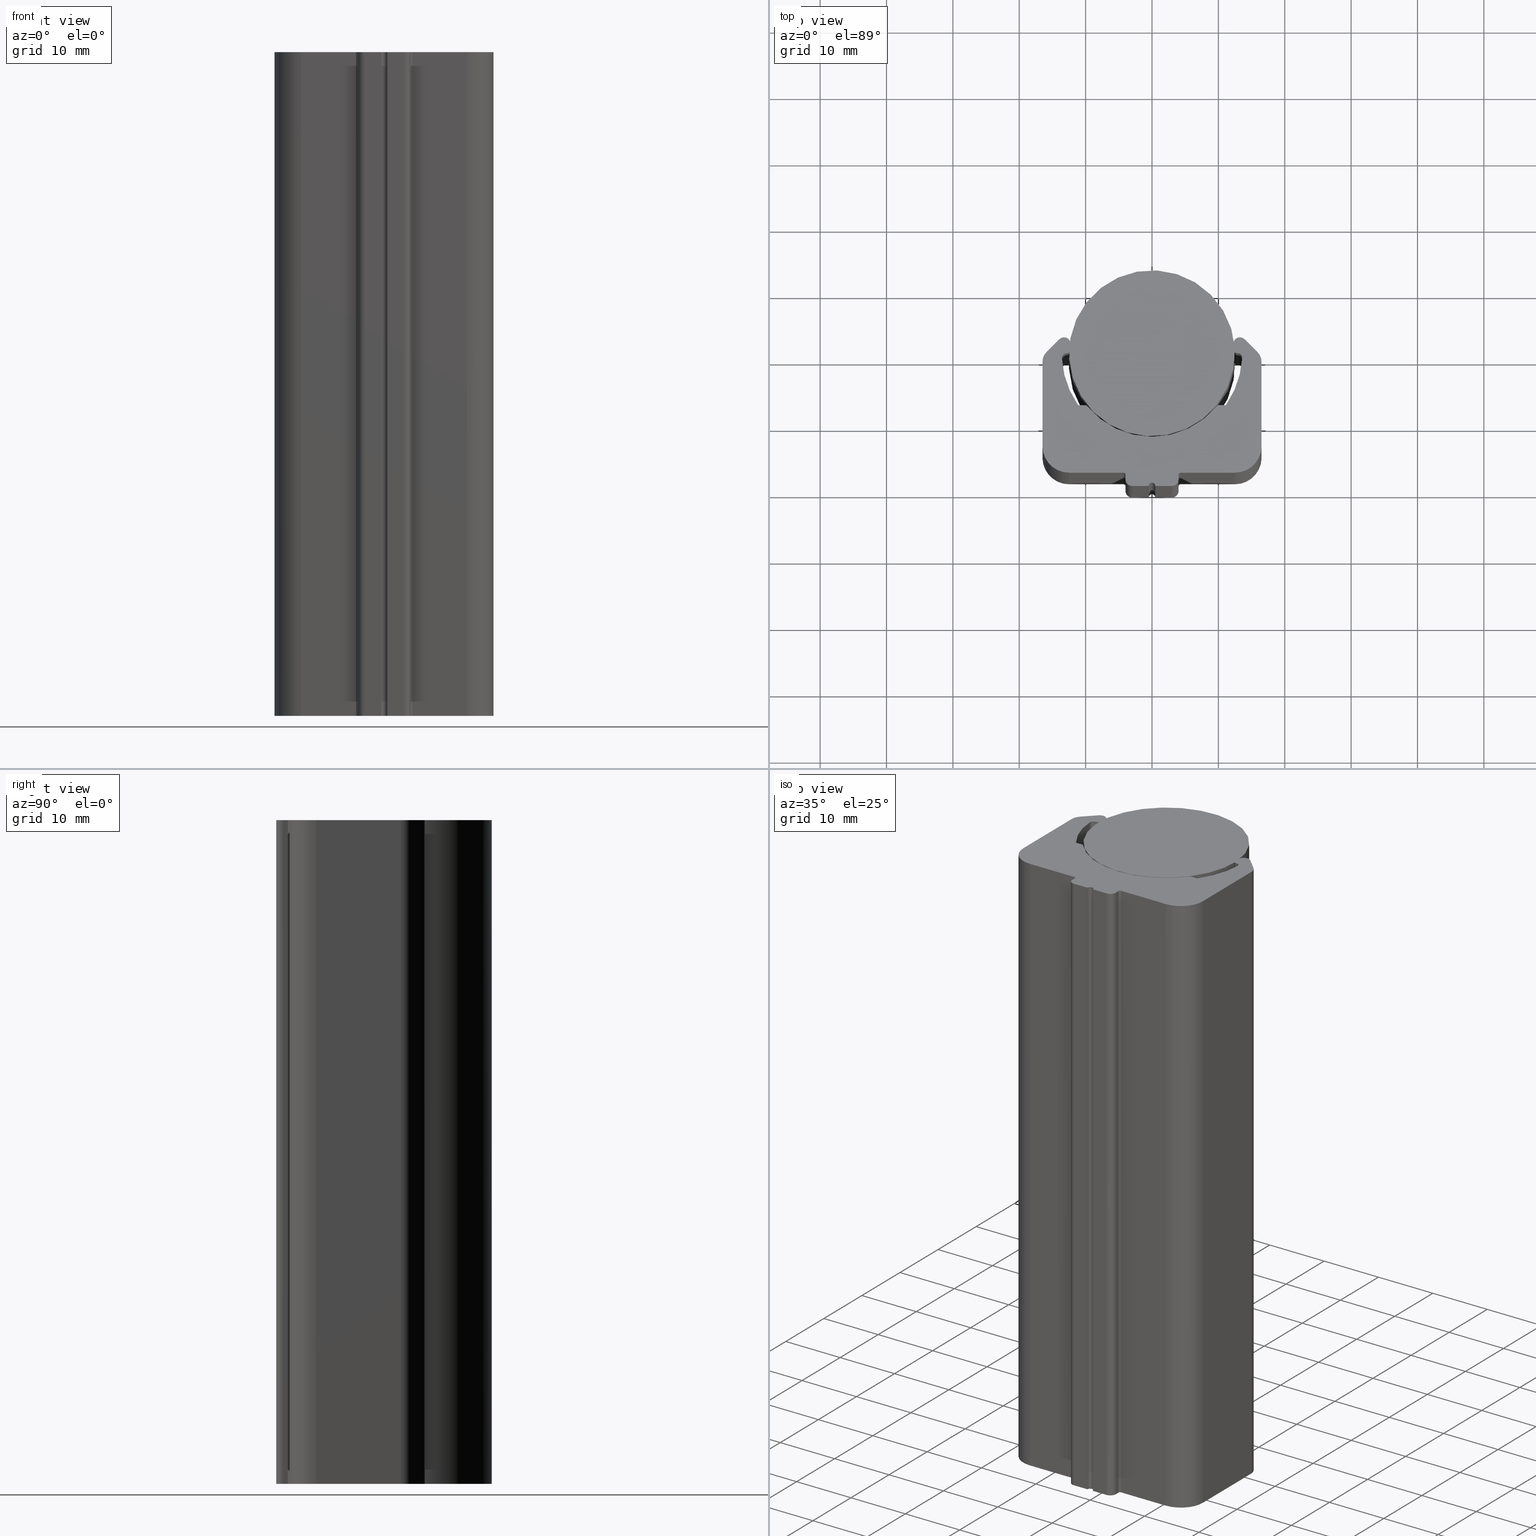
[diagram: canonical four-view strip — front | top / right | iso, engineering-drawing reading convention]
A machine part, canonical four-view strip (front | top / right | iso — engineering-drawing reading convention). The complete STEP part file that produces these views, byte-faithful:
ISO-10303-21;
HEADER;
/* Generated by software containing ST-Developer
 * from STEP Tools, Inc. (www.steptools.com) 
 */

FILE_DESCRIPTION(
/* description */ ('PROF. CONTENIM. TONDO D.25'),
/* implementation_level */ '2;1');

FILE_NAME(
/* name */ 
'C:\\Users\\tecnico5\\Desktop\\SITOWEB\\BPRGD0000022\\BPRGD0000022.stp',

/* time_stamp */ '2022-07-27T10:49:02+02:00',
/* author */ ('tecnico3.vi'),
/* organization */ (''),
/* preprocessor_version */ 'ST-DEVELOPER v18.1',
/* originating_system */ 'Autodesk Inventor 2022',
/* authorisation */ '');

FILE_SCHEMA (('AUTOMOTIVE_DESIGN { 1 0 10303 214 3 1 1 }'));
ENDSEC;

DATA;
#10=MECHANICAL_DESIGN_GEOMETRIC_PRESENTATION_REPRESENTATION('',(#23,#24),
#1483);
#11=ITEM_DEFINED_TRANSFORMATION($,$,#881,#972);
#12=ITEM_DEFINED_TRANSFORMATION($,$,#966,#973);
#13=(
REPRESENTATION_RELATIONSHIP($,$,#1497,#1496)
REPRESENTATION_RELATIONSHIP_WITH_TRANSFORMATION(#11)
SHAPE_REPRESENTATION_RELATIONSHIP()
);
#14=(
REPRESENTATION_RELATIONSHIP($,$,#1498,#1496)
REPRESENTATION_RELATIONSHIP_WITH_TRANSFORMATION(#12)
SHAPE_REPRESENTATION_RELATIONSHIP()
);
#15=CONTEXT_DEPENDENT_SHAPE_REPRESENTATION(#13,#1494);
#16=CONTEXT_DEPENDENT_SHAPE_REPRESENTATION(#14,#1495);
#17=NEXT_ASSEMBLY_USAGE_OCCURRENCE('01.G25.C8G:1','01.G25.C8G:1',
'01.G25.C8G:1',#1500,#1501,'01.G25.C8G:1');
#18=NEXT_ASSEMBLY_USAGE_OCCURRENCE('3DSD001633:1','3DSD001633:1',
'3DSD001633:1',#1500,#1502,'3DSD001633:1');
#19=SHAPE_REPRESENTATION_RELATIONSHIP('SRR','None',#1497,#21);
#20=SHAPE_REPRESENTATION_RELATIONSHIP('SRR','None',#1498,#22);
#21=ADVANCED_BREP_SHAPE_REPRESENTATION('',(#25),#1481);
#22=ADVANCED_BREP_SHAPE_REPRESENTATION('',(#26),#1482);
#23=STYLED_ITEM('',(#844),#25);
#24=STYLED_ITEM('',(#845),#26);
#25=MANIFOLD_SOLID_BREP('Solido2',#816);
#26=MANIFOLD_SOLID_BREP('Solido1',#817);
#27=CYLINDRICAL_SURFACE('',#905,1.);
#28=CYLINDRICAL_SURFACE('',#908,0.5);
#29=CYLINDRICAL_SURFACE('',#911,0.7);
#30=CYLINDRICAL_SURFACE('',#913,13.6);
#31=CYLINDRICAL_SURFACE('',#915,0.3);
#32=CYLINDRICAL_SURFACE('',#918,0.3);
#33=CYLINDRICAL_SURFACE('',#920,12.6);
#34=CYLINDRICAL_SURFACE('',#922,0.3);
#35=CYLINDRICAL_SURFACE('',#925,0.3);
#36=CYLINDRICAL_SURFACE('',#927,13.6);
#37=CYLINDRICAL_SURFACE('',#929,0.7);
#38=CYLINDRICAL_SURFACE('',#932,0.5);
#39=CYLINDRICAL_SURFACE('',#935,1.);
#40=CYLINDRICAL_SURFACE('',#938,2.);
#41=CYLINDRICAL_SURFACE('',#941,4.);
#42=CYLINDRICAL_SURFACE('',#944,0.3);
#43=CYLINDRICAL_SURFACE('',#947,1.);
#44=CYLINDRICAL_SURFACE('',#950,0.5);
#45=CYLINDRICAL_SURFACE('',#953,1.);
#46=CYLINDRICAL_SURFACE('',#956,0.3);
#47=CYLINDRICAL_SURFACE('',#959,4.);
#48=CYLINDRICAL_SURFACE('',#962,2.);
#49=CYLINDRICAL_SURFACE('',#969,12.5);
#50=FACE_OUTER_BOUND('',#93,.T.);
#51=FACE_OUTER_BOUND('',#94,.T.);
#52=FACE_OUTER_BOUND('',#95,.T.);
#53=FACE_OUTER_BOUND('',#96,.T.);
#54=FACE_OUTER_BOUND('',#97,.T.);
#55=FACE_OUTER_BOUND('',#98,.T.);
#56=FACE_OUTER_BOUND('',#99,.T.);
#57=FACE_OUTER_BOUND('',#100,.T.);
#58=FACE_OUTER_BOUND('',#101,.T.);
#59=FACE_OUTER_BOUND('',#102,.T.);
#60=FACE_OUTER_BOUND('',#103,.T.);
#61=FACE_OUTER_BOUND('',#104,.T.);
#62=FACE_OUTER_BOUND('',#105,.T.);
#63=FACE_OUTER_BOUND('',#106,.T.);
#64=FACE_OUTER_BOUND('',#107,.T.);
#65=FACE_OUTER_BOUND('',#108,.T.);
#66=FACE_OUTER_BOUND('',#109,.T.);
#67=FACE_OUTER_BOUND('',#110,.T.);
#68=FACE_OUTER_BOUND('',#111,.T.);
#69=FACE_OUTER_BOUND('',#112,.T.);
#70=FACE_OUTER_BOUND('',#113,.T.);
#71=FACE_OUTER_BOUND('',#114,.T.);
#72=FACE_OUTER_BOUND('',#115,.T.);
#73=FACE_OUTER_BOUND('',#116,.T.);
#74=FACE_OUTER_BOUND('',#117,.T.);
#75=FACE_OUTER_BOUND('',#118,.T.);
#76=FACE_OUTER_BOUND('',#119,.T.);
#77=FACE_OUTER_BOUND('',#120,.T.);
#78=FACE_OUTER_BOUND('',#121,.T.);
#79=FACE_OUTER_BOUND('',#122,.T.);
#80=FACE_OUTER_BOUND('',#123,.T.);
#81=FACE_OUTER_BOUND('',#124,.T.);
#82=FACE_OUTER_BOUND('',#125,.T.);
#83=FACE_OUTER_BOUND('',#126,.T.);
#84=FACE_OUTER_BOUND('',#127,.T.);
#85=FACE_OUTER_BOUND('',#128,.T.);
#86=FACE_OUTER_BOUND('',#129,.T.);
#87=FACE_OUTER_BOUND('',#130,.T.);
#88=FACE_OUTER_BOUND('',#131,.T.);
#89=FACE_OUTER_BOUND('',#132,.T.);
#90=FACE_OUTER_BOUND('',#133,.T.);
#91=FACE_OUTER_BOUND('',#134,.T.);
#92=FACE_OUTER_BOUND('',#135,.T.);
#93=EDGE_LOOP('',(#519,#520,#521,#522,#523,#524,#525,#526,#527,#528,#529,
#530,#531,#532,#533,#534,#535,#536,#537,#538,#539,#540,#541,#542,#543,#544,
#545,#546,#547,#548,#549,#550,#551,#552,#553,#554,#555,#556));
#94=EDGE_LOOP('',(#557,#558,#559,#560));
#95=EDGE_LOOP('',(#561,#562,#563,#564));
#96=EDGE_LOOP('',(#565,#566,#567,#568));
#97=EDGE_LOOP('',(#569,#570,#571,#572));
#98=EDGE_LOOP('',(#573,#574,#575,#576));
#99=EDGE_LOOP('',(#577,#578,#579,#580));
#100=EDGE_LOOP('',(#581,#582,#583,#584));
#101=EDGE_LOOP('',(#585,#586,#587,#588));
#102=EDGE_LOOP('',(#589,#590,#591,#592));
#103=EDGE_LOOP('',(#593,#594,#595,#596));
#104=EDGE_LOOP('',(#597,#598,#599,#600));
#105=EDGE_LOOP('',(#601,#602,#603,#604));
#106=EDGE_LOOP('',(#605,#606,#607,#608));
#107=EDGE_LOOP('',(#609,#610,#611,#612));
#108=EDGE_LOOP('',(#613,#614,#615,#616));
#109=EDGE_LOOP('',(#617,#618,#619,#620));
#110=EDGE_LOOP('',(#621,#622,#623,#624));
#111=EDGE_LOOP('',(#625,#626,#627,#628));
#112=EDGE_LOOP('',(#629,#630,#631,#632));
#113=EDGE_LOOP('',(#633,#634,#635,#636));
#114=EDGE_LOOP('',(#637,#638,#639,#640));
#115=EDGE_LOOP('',(#641,#642,#643,#644));
#116=EDGE_LOOP('',(#645,#646,#647,#648));
#117=EDGE_LOOP('',(#649,#650,#651,#652));
#118=EDGE_LOOP('',(#653,#654,#655,#656));
#119=EDGE_LOOP('',(#657,#658,#659,#660));
#120=EDGE_LOOP('',(#661,#662,#663,#664));
#121=EDGE_LOOP('',(#665,#666,#667,#668));
#122=EDGE_LOOP('',(#669,#670,#671,#672));
#123=EDGE_LOOP('',(#673,#674,#675,#676));
#124=EDGE_LOOP('',(#677,#678,#679,#680));
#125=EDGE_LOOP('',(#681,#682,#683,#684));
#126=EDGE_LOOP('',(#685,#686,#687,#688));
#127=EDGE_LOOP('',(#689,#690,#691,#692));
#128=EDGE_LOOP('',(#693,#694,#695,#696));
#129=EDGE_LOOP('',(#697,#698,#699,#700));
#130=EDGE_LOOP('',(#701,#702,#703,#704));
#131=EDGE_LOOP('',(#705,#706,#707,#708));
#132=EDGE_LOOP('',(#709,#710,#711,#712,#713,#714,#715,#716,#717,#718,#719,
#720,#721,#722,#723,#724,#725,#726,#727,#728,#729,#730,#731,#732,#733,#734,
#735,#736,#737,#738,#739,#740,#741,#742,#743,#744,#745,#746));
#133=EDGE_LOOP('',(#747));
#134=EDGE_LOOP('',(#748,#749,#750,#751));
#135=EDGE_LOOP('',(#752));
#136=CIRCLE('',#883,1.);
#137=CIRCLE('',#884,0.5);
#138=CIRCLE('',#885,0.7);
#139=CIRCLE('',#886,13.6);
#140=CIRCLE('',#887,0.3);
#141=CIRCLE('',#888,0.3);
#142=CIRCLE('',#889,12.6);
#143=CIRCLE('',#890,0.3);
#144=CIRCLE('',#891,0.3);
#145=CIRCLE('',#892,13.6);
#146=CIRCLE('',#893,0.7);
#147=CIRCLE('',#894,0.5);
#148=CIRCLE('',#895,1.);
#149=CIRCLE('',#896,2.);
#150=CIRCLE('',#897,4.);
#151=CIRCLE('',#898,0.3);
#152=CIRCLE('',#899,1.);
#153=CIRCLE('',#900,0.5);
#154=CIRCLE('',#901,1.);
#155=CIRCLE('',#902,0.3);
#156=CIRCLE('',#903,4.);
#157=CIRCLE('',#904,2.);
#158=CIRCLE('',#906,1.);
#159=CIRCLE('',#909,0.5);
#160=CIRCLE('',#912,0.7);
#161=CIRCLE('',#914,13.6);
#162=CIRCLE('',#916,0.3);
#163=CIRCLE('',#919,0.3);
#164=CIRCLE('',#921,12.6);
#165=CIRCLE('',#923,0.3);
#166=CIRCLE('',#926,0.3);
#167=CIRCLE('',#928,13.6);
#168=CIRCLE('',#930,0.7);
#169=CIRCLE('',#933,0.5);
#170=CIRCLE('',#936,1.);
#171=CIRCLE('',#939,2.);
#172=CIRCLE('',#942,4.);
#173=CIRCLE('',#945,0.3);
#174=CIRCLE('',#948,1.);
#175=CIRCLE('',#951,0.5);
#176=CIRCLE('',#954,1.);
#177=CIRCLE('',#957,0.3);
#178=CIRCLE('',#960,4.);
#179=CIRCLE('',#963,2.);
#180=CIRCLE('',#968,12.5);
#181=CIRCLE('',#970,12.5);
#182=LINE('',#1238,#253);
#183=LINE('',#1242,#254);
#184=LINE('',#1246,#255);
#185=LINE('',#1254,#256);
#186=LINE('',#1262,#257);
#187=LINE('',#1270,#258);
#188=LINE('',#1274,#259);
#189=LINE('',#1278,#260);
#190=LINE('',#1282,#261);
#191=LINE('',#1286,#262);
#192=LINE('',#1290,#263);
#193=LINE('',#1294,#264);
#194=LINE('',#1298,#265);
#195=LINE('',#1302,#266);
#196=LINE('',#1306,#267);
#197=LINE('',#1310,#268);
#198=LINE('',#1314,#269);
#199=LINE('',#1317,#270);
#200=LINE('',#1320,#271);
#201=LINE('',#1321,#272);
#202=LINE('',#1325,#273);
#203=LINE('',#1328,#274);
#204=LINE('',#1329,#275);
#205=LINE('',#1333,#276);
#206=LINE('',#1337,#277);
#207=LINE('',#1341,#278);
#208=LINE('',#1344,#279);
#209=LINE('',#1345,#280);
#210=LINE('',#1349,#281);
#211=LINE('',#1353,#282);
#212=LINE('',#1357,#283);
#213=LINE('',#1360,#284);
#214=LINE('',#1361,#285);
#215=LINE('',#1365,#286);
#216=LINE('',#1369,#287);
#217=LINE('',#1373,#288);
#218=LINE('',#1376,#289);
#219=LINE('',#1377,#290);
#220=LINE('',#1381,#291);
#221=LINE('',#1384,#292);
#222=LINE('',#1385,#293);
#223=LINE('',#1389,#294);
#224=LINE('',#1392,#295);
#225=LINE('',#1393,#296);
#226=LINE('',#1397,#297);
#227=LINE('',#1400,#298);
#228=LINE('',#1401,#299);
#229=LINE('',#1405,#300);
#230=LINE('',#1408,#301);
#231=LINE('',#1409,#302);
#232=LINE('',#1413,#303);
#233=LINE('',#1416,#304);
#234=LINE('',#1417,#305);
#235=LINE('',#1421,#306);
#236=LINE('',#1424,#307);
#237=LINE('',#1425,#308);
#238=LINE('',#1429,#309);
#239=LINE('',#1432,#310);
#240=LINE('',#1433,#311);
#241=LINE('',#1437,#312);
#242=LINE('',#1440,#313);
#243=LINE('',#1441,#314);
#244=LINE('',#1445,#315);
#245=LINE('',#1448,#316);
#246=LINE('',#1449,#317);
#247=LINE('',#1453,#318);
#248=LINE('',#1456,#319);
#249=LINE('',#1457,#320);
#250=LINE('',#1461,#321);
#251=LINE('',#1463,#322);
#252=LINE('',#1472,#323);
#253=VECTOR('',#980,10.);
#254=VECTOR('',#983,10.);
#255=VECTOR('',#986,10.);
#256=VECTOR('',#993,10.);
#257=VECTOR('',#1000,10.);
#258=VECTOR('',#1007,10.);
#259=VECTOR('',#1010,10.);
#260=VECTOR('',#1013,10.);
#261=VECTOR('',#1016,10.);
#262=VECTOR('',#1019,10.);
#263=VECTOR('',#1022,10.);
#264=VECTOR('',#1025,10.);
#265=VECTOR('',#1028,10.);
#266=VECTOR('',#1031,10.);
#267=VECTOR('',#1034,10.);
#268=VECTOR('',#1037,10.);
#269=VECTOR('',#1042,10.);
#270=VECTOR('',#1045,10.);
#271=VECTOR('',#1048,10.);
#272=VECTOR('',#1049,10.);
#273=VECTOR('',#1054,10.);
#274=VECTOR('',#1057,10.);
#275=VECTOR('',#1058,10.);
#276=VECTOR('',#1063,10.);
#277=VECTOR('',#1068,10.);
#278=VECTOR('',#1073,10.);
#279=VECTOR('',#1076,10.);
#280=VECTOR('',#1077,10.);
#281=VECTOR('',#1082,10.);
#282=VECTOR('',#1087,10.);
#283=VECTOR('',#1092,10.);
#284=VECTOR('',#1095,10.);
#285=VECTOR('',#1096,10.);
#286=VECTOR('',#1101,10.);
#287=VECTOR('',#1106,10.);
#288=VECTOR('',#1111,10.);
#289=VECTOR('',#1114,10.);
#290=VECTOR('',#1115,10.);
#291=VECTOR('',#1120,10.);
#292=VECTOR('',#1123,10.);
#293=VECTOR('',#1124,10.);
#294=VECTOR('',#1129,10.);
#295=VECTOR('',#1132,10.);
#296=VECTOR('',#1133,10.);
#297=VECTOR('',#1138,10.);
#298=VECTOR('',#1141,10.);
#299=VECTOR('',#1142,10.);
#300=VECTOR('',#1147,10.);
#301=VECTOR('',#1150,10.);
#302=VECTOR('',#1151,10.);
#303=VECTOR('',#1156,10.);
#304=VECTOR('',#1159,10.);
#305=VECTOR('',#1160,10.);
#306=VECTOR('',#1165,10.);
#307=VECTOR('',#1168,10.);
#308=VECTOR('',#1169,10.);
#309=VECTOR('',#1174,10.);
#310=VECTOR('',#1177,10.);
#311=VECTOR('',#1178,10.);
#312=VECTOR('',#1183,10.);
#313=VECTOR('',#1186,10.);
#314=VECTOR('',#1187,10.);
#315=VECTOR('',#1192,10.);
#316=VECTOR('',#1195,10.);
#317=VECTOR('',#1196,10.);
#318=VECTOR('',#1201,10.);
#319=VECTOR('',#1204,10.);
#320=VECTOR('',#1205,10.);
#321=VECTOR('',#1210,10.);
#322=VECTOR('',#1213,10.);
#323=VECTOR('',#1226,12.5);
#324=VERTEX_POINT('',#1236);
#325=VERTEX_POINT('',#1237);
#326=VERTEX_POINT('',#1239);
#327=VERTEX_POINT('',#1241);
#328=VERTEX_POINT('',#1243);
#329=VERTEX_POINT('',#1245);
#330=VERTEX_POINT('',#1247);
#331=VERTEX_POINT('',#1249);
#332=VERTEX_POINT('',#1251);
#333=VERTEX_POINT('',#1253);
#334=VERTEX_POINT('',#1255);
#335=VERTEX_POINT('',#1257);
#336=VERTEX_POINT('',#1259);
#337=VERTEX_POINT('',#1261);
#338=VERTEX_POINT('',#1263);
#339=VERTEX_POINT('',#1265);
#340=VERTEX_POINT('',#1267);
#341=VERTEX_POINT('',#1269);
#342=VERTEX_POINT('',#1271);
#343=VERTEX_POINT('',#1273);
#344=VERTEX_POINT('',#1275);
#345=VERTEX_POINT('',#1277);
#346=VERTEX_POINT('',#1279);
#347=VERTEX_POINT('',#1281);
#348=VERTEX_POINT('',#1283);
#349=VERTEX_POINT('',#1285);
#350=VERTEX_POINT('',#1287);
#351=VERTEX_POINT('',#1289);
#352=VERTEX_POINT('',#1291);
#353=VERTEX_POINT('',#1293);
#354=VERTEX_POINT('',#1295);
#355=VERTEX_POINT('',#1297);
#356=VERTEX_POINT('',#1299);
#357=VERTEX_POINT('',#1301);
#358=VERTEX_POINT('',#1303);
#359=VERTEX_POINT('',#1305);
#360=VERTEX_POINT('',#1307);
#361=VERTEX_POINT('',#1309);
#362=VERTEX_POINT('',#1313);
#363=VERTEX_POINT('',#1315);
#364=VERTEX_POINT('',#1319);
#365=VERTEX_POINT('',#1323);
#366=VERTEX_POINT('',#1327);
#367=VERTEX_POINT('',#1331);
#368=VERTEX_POINT('',#1335);
#369=VERTEX_POINT('',#1339);
#370=VERTEX_POINT('',#1343);
#371=VERTEX_POINT('',#1347);
#372=VERTEX_POINT('',#1351);
#373=VERTEX_POINT('',#1355);
#374=VERTEX_POINT('',#1359);
#375=VERTEX_POINT('',#1363);
#376=VERTEX_POINT('',#1367);
#377=VERTEX_POINT('',#1371);
#378=VERTEX_POINT('',#1375);
#379=VERTEX_POINT('',#1379);
#380=VERTEX_POINT('',#1383);
#381=VERTEX_POINT('',#1387);
#382=VERTEX_POINT('',#1391);
#383=VERTEX_POINT('',#1395);
#384=VERTEX_POINT('',#1399);
#385=VERTEX_POINT('',#1403);
#386=VERTEX_POINT('',#1407);
#387=VERTEX_POINT('',#1411);
#388=VERTEX_POINT('',#1415);
#389=VERTEX_POINT('',#1419);
#390=VERTEX_POINT('',#1423);
#391=VERTEX_POINT('',#1427);
#392=VERTEX_POINT('',#1431);
#393=VERTEX_POINT('',#1435);
#394=VERTEX_POINT('',#1439);
#395=VERTEX_POINT('',#1443);
#396=VERTEX_POINT('',#1447);
#397=VERTEX_POINT('',#1451);
#398=VERTEX_POINT('',#1455);
#399=VERTEX_POINT('',#1459);
#400=VERTEX_POINT('',#1467);
#401=VERTEX_POINT('',#1470);
#402=EDGE_CURVE('',#324,#325,#182,.T.);
#403=EDGE_CURVE('',#325,#326,#136,.T.);
#404=EDGE_CURVE('',#326,#327,#183,.T.);
#405=EDGE_CURVE('',#327,#328,#137,.T.);
#406=EDGE_CURVE('',#328,#329,#184,.T.);
#407=EDGE_CURVE('',#329,#330,#138,.T.);
#408=EDGE_CURVE('',#330,#331,#139,.T.);
#409=EDGE_CURVE('',#331,#332,#140,.T.);
#410=EDGE_CURVE('',#332,#333,#185,.T.);
#411=EDGE_CURVE('',#333,#334,#141,.T.);
#412=EDGE_CURVE('',#334,#335,#142,.T.);
#413=EDGE_CURVE('',#335,#336,#143,.T.);
#414=EDGE_CURVE('',#336,#337,#186,.T.);
#415=EDGE_CURVE('',#337,#338,#144,.T.);
#416=EDGE_CURVE('',#338,#339,#145,.T.);
#417=EDGE_CURVE('',#339,#340,#146,.T.);
#418=EDGE_CURVE('',#340,#341,#187,.T.);
#419=EDGE_CURVE('',#341,#342,#147,.T.);
#420=EDGE_CURVE('',#342,#343,#188,.T.);
#421=EDGE_CURVE('',#343,#344,#148,.T.);
#422=EDGE_CURVE('',#344,#345,#189,.T.);
#423=EDGE_CURVE('',#345,#346,#149,.T.);
#424=EDGE_CURVE('',#346,#347,#190,.T.);
#425=EDGE_CURVE('',#347,#348,#150,.T.);
#426=EDGE_CURVE('',#348,#349,#191,.T.);
#427=EDGE_CURVE('',#349,#350,#151,.T.);
#428=EDGE_CURVE('',#350,#351,#192,.T.);
#429=EDGE_CURVE('',#351,#352,#152,.T.);
#430=EDGE_CURVE('',#352,#353,#193,.T.);
#431=EDGE_CURVE('',#353,#354,#153,.T.);
#432=EDGE_CURVE('',#354,#355,#194,.T.);
#433=EDGE_CURVE('',#355,#356,#154,.T.);
#434=EDGE_CURVE('',#356,#357,#195,.T.);
#435=EDGE_CURVE('',#357,#358,#155,.T.);
#436=EDGE_CURVE('',#358,#359,#196,.T.);
#437=EDGE_CURVE('',#359,#360,#156,.T.);
#438=EDGE_CURVE('',#360,#361,#197,.T.);
#439=EDGE_CURVE('',#361,#324,#157,.T.);
#440=EDGE_CURVE('',#362,#325,#198,.T.);
#441=EDGE_CURVE('',#363,#362,#158,.T.);
#442=EDGE_CURVE('',#326,#363,#199,.T.);
#443=EDGE_CURVE('',#364,#363,#200,.T.);
#444=EDGE_CURVE('',#327,#364,#201,.T.);
#445=EDGE_CURVE('',#365,#364,#159,.T.);
#446=EDGE_CURVE('',#328,#365,#202,.T.);
#447=EDGE_CURVE('',#366,#365,#203,.T.);
#448=EDGE_CURVE('',#329,#366,#204,.T.);
#449=EDGE_CURVE('',#367,#366,#160,.T.);
#450=EDGE_CURVE('',#330,#367,#205,.T.);
#451=EDGE_CURVE('',#368,#367,#161,.T.);
#452=EDGE_CURVE('',#331,#368,#206,.T.);
#453=EDGE_CURVE('',#369,#368,#162,.T.);
#454=EDGE_CURVE('',#332,#369,#207,.T.);
#455=EDGE_CURVE('',#370,#369,#208,.T.);
#456=EDGE_CURVE('',#333,#370,#209,.T.);
#457=EDGE_CURVE('',#371,#370,#163,.T.);
#458=EDGE_CURVE('',#334,#371,#210,.T.);
#459=EDGE_CURVE('',#372,#371,#164,.T.);
#460=EDGE_CURVE('',#335,#372,#211,.T.);
#461=EDGE_CURVE('',#373,#372,#165,.T.);
#462=EDGE_CURVE('',#336,#373,#212,.T.);
#463=EDGE_CURVE('',#374,#373,#213,.T.);
#464=EDGE_CURVE('',#337,#374,#214,.T.);
#465=EDGE_CURVE('',#375,#374,#166,.T.);
#466=EDGE_CURVE('',#338,#375,#215,.T.);
#467=EDGE_CURVE('',#376,#375,#167,.T.);
#468=EDGE_CURVE('',#339,#376,#216,.T.);
#469=EDGE_CURVE('',#377,#376,#168,.T.);
#470=EDGE_CURVE('',#340,#377,#217,.T.);
#471=EDGE_CURVE('',#378,#377,#218,.T.);
#472=EDGE_CURVE('',#341,#378,#219,.T.);
#473=EDGE_CURVE('',#379,#378,#169,.T.);
#474=EDGE_CURVE('',#342,#379,#220,.T.);
#475=EDGE_CURVE('',#380,#379,#221,.T.);
#476=EDGE_CURVE('',#343,#380,#222,.T.);
#477=EDGE_CURVE('',#381,#380,#170,.T.);
#478=EDGE_CURVE('',#344,#381,#223,.T.);
#479=EDGE_CURVE('',#382,#381,#224,.T.);
#480=EDGE_CURVE('',#345,#382,#225,.T.);
#481=EDGE_CURVE('',#383,#382,#171,.T.);
#482=EDGE_CURVE('',#346,#383,#226,.T.);
#483=EDGE_CURVE('',#384,#383,#227,.T.);
#484=EDGE_CURVE('',#347,#384,#228,.T.);
#485=EDGE_CURVE('',#385,#384,#172,.T.);
#486=EDGE_CURVE('',#348,#385,#229,.T.);
#487=EDGE_CURVE('',#386,#385,#230,.T.);
#488=EDGE_CURVE('',#349,#386,#231,.T.);
#489=EDGE_CURVE('',#387,#386,#173,.T.);
#490=EDGE_CURVE('',#350,#387,#232,.T.);
#491=EDGE_CURVE('',#388,#387,#233,.T.);
#492=EDGE_CURVE('',#351,#388,#234,.T.);
#493=EDGE_CURVE('',#389,#388,#174,.T.);
#494=EDGE_CURVE('',#352,#389,#235,.T.);
#495=EDGE_CURVE('',#390,#389,#236,.T.);
#496=EDGE_CURVE('',#353,#390,#237,.T.);
#497=EDGE_CURVE('',#391,#390,#175,.T.);
#498=EDGE_CURVE('',#354,#391,#238,.T.);
#499=EDGE_CURVE('',#392,#391,#239,.T.);
#500=EDGE_CURVE('',#355,#392,#240,.T.);
#501=EDGE_CURVE('',#393,#392,#176,.T.);
#502=EDGE_CURVE('',#356,#393,#241,.T.);
#503=EDGE_CURVE('',#394,#393,#242,.T.);
#504=EDGE_CURVE('',#357,#394,#243,.T.);
#505=EDGE_CURVE('',#395,#394,#177,.T.);
#506=EDGE_CURVE('',#358,#395,#244,.T.);
#507=EDGE_CURVE('',#396,#395,#245,.T.);
#508=EDGE_CURVE('',#359,#396,#246,.T.);
#509=EDGE_CURVE('',#397,#396,#178,.T.);
#510=EDGE_CURVE('',#360,#397,#247,.T.);
#511=EDGE_CURVE('',#398,#397,#248,.T.);
#512=EDGE_CURVE('',#361,#398,#249,.T.);
#513=EDGE_CURVE('',#399,#398,#179,.T.);
#514=EDGE_CURVE('',#324,#399,#250,.T.);
#515=EDGE_CURVE('',#362,#399,#251,.T.);
#516=EDGE_CURVE('',#400,#400,#180,.T.);
#517=EDGE_CURVE('',#401,#401,#181,.T.);
#518=EDGE_CURVE('',#401,#400,#252,.T.);
#519=ORIENTED_EDGE('',*,*,#402,.T.);
#520=ORIENTED_EDGE('',*,*,#403,.T.);
#521=ORIENTED_EDGE('',*,*,#404,.T.);
#522=ORIENTED_EDGE('',*,*,#405,.T.);
#523=ORIENTED_EDGE('',*,*,#406,.T.);
#524=ORIENTED_EDGE('',*,*,#407,.T.);
#525=ORIENTED_EDGE('',*,*,#408,.T.);
#526=ORIENTED_EDGE('',*,*,#409,.T.);
#527=ORIENTED_EDGE('',*,*,#410,.T.);
#528=ORIENTED_EDGE('',*,*,#411,.T.);
#529=ORIENTED_EDGE('',*,*,#412,.T.);
#530=ORIENTED_EDGE('',*,*,#413,.T.);
#531=ORIENTED_EDGE('',*,*,#414,.T.);
#532=ORIENTED_EDGE('',*,*,#415,.T.);
#533=ORIENTED_EDGE('',*,*,#416,.T.);
#534=ORIENTED_EDGE('',*,*,#417,.T.);
#535=ORIENTED_EDGE('',*,*,#418,.T.);
#536=ORIENTED_EDGE('',*,*,#419,.T.);
#537=ORIENTED_EDGE('',*,*,#420,.T.);
#538=ORIENTED_EDGE('',*,*,#421,.T.);
#539=ORIENTED_EDGE('',*,*,#422,.T.);
#540=ORIENTED_EDGE('',*,*,#423,.T.);
#541=ORIENTED_EDGE('',*,*,#424,.T.);
#542=ORIENTED_EDGE('',*,*,#425,.T.);
#543=ORIENTED_EDGE('',*,*,#426,.T.);
#544=ORIENTED_EDGE('',*,*,#427,.T.);
#545=ORIENTED_EDGE('',*,*,#428,.T.);
#546=ORIENTED_EDGE('',*,*,#429,.T.);
#547=ORIENTED_EDGE('',*,*,#430,.T.);
#548=ORIENTED_EDGE('',*,*,#431,.T.);
#549=ORIENTED_EDGE('',*,*,#432,.T.);
#550=ORIENTED_EDGE('',*,*,#433,.T.);
#551=ORIENTED_EDGE('',*,*,#434,.T.);
#552=ORIENTED_EDGE('',*,*,#435,.T.);
#553=ORIENTED_EDGE('',*,*,#436,.T.);
#554=ORIENTED_EDGE('',*,*,#437,.T.);
#555=ORIENTED_EDGE('',*,*,#438,.T.);
#556=ORIENTED_EDGE('',*,*,#439,.T.);
#557=ORIENTED_EDGE('',*,*,#440,.F.);
#558=ORIENTED_EDGE('',*,*,#441,.F.);
#559=ORIENTED_EDGE('',*,*,#442,.F.);
#560=ORIENTED_EDGE('',*,*,#403,.F.);
#561=ORIENTED_EDGE('',*,*,#442,.T.);
#562=ORIENTED_EDGE('',*,*,#443,.F.);
#563=ORIENTED_EDGE('',*,*,#444,.F.);
#564=ORIENTED_EDGE('',*,*,#404,.F.);
#565=ORIENTED_EDGE('',*,*,#444,.T.);
#566=ORIENTED_EDGE('',*,*,#445,.F.);
#567=ORIENTED_EDGE('',*,*,#446,.F.);
#568=ORIENTED_EDGE('',*,*,#405,.F.);
#569=ORIENTED_EDGE('',*,*,#446,.T.);
#570=ORIENTED_EDGE('',*,*,#447,.F.);
#571=ORIENTED_EDGE('',*,*,#448,.F.);
#572=ORIENTED_EDGE('',*,*,#406,.F.);
#573=ORIENTED_EDGE('',*,*,#448,.T.);
#574=ORIENTED_EDGE('',*,*,#449,.F.);
#575=ORIENTED_EDGE('',*,*,#450,.F.);
#576=ORIENTED_EDGE('',*,*,#407,.F.);
#577=ORIENTED_EDGE('',*,*,#450,.T.);
#578=ORIENTED_EDGE('',*,*,#451,.F.);
#579=ORIENTED_EDGE('',*,*,#452,.F.);
#580=ORIENTED_EDGE('',*,*,#408,.F.);
#581=ORIENTED_EDGE('',*,*,#452,.T.);
#582=ORIENTED_EDGE('',*,*,#453,.F.);
#583=ORIENTED_EDGE('',*,*,#454,.F.);
#584=ORIENTED_EDGE('',*,*,#409,.F.);
#585=ORIENTED_EDGE('',*,*,#454,.T.);
#586=ORIENTED_EDGE('',*,*,#455,.F.);
#587=ORIENTED_EDGE('',*,*,#456,.F.);
#588=ORIENTED_EDGE('',*,*,#410,.F.);
#589=ORIENTED_EDGE('',*,*,#456,.T.);
#590=ORIENTED_EDGE('',*,*,#457,.F.);
#591=ORIENTED_EDGE('',*,*,#458,.F.);
#592=ORIENTED_EDGE('',*,*,#411,.F.);
#593=ORIENTED_EDGE('',*,*,#458,.T.);
#594=ORIENTED_EDGE('',*,*,#459,.F.);
#595=ORIENTED_EDGE('',*,*,#460,.F.);
#596=ORIENTED_EDGE('',*,*,#412,.F.);
#597=ORIENTED_EDGE('',*,*,#460,.T.);
#598=ORIENTED_EDGE('',*,*,#461,.F.);
#599=ORIENTED_EDGE('',*,*,#462,.F.);
#600=ORIENTED_EDGE('',*,*,#413,.F.);
#601=ORIENTED_EDGE('',*,*,#462,.T.);
#602=ORIENTED_EDGE('',*,*,#463,.F.);
#603=ORIENTED_EDGE('',*,*,#464,.F.);
#604=ORIENTED_EDGE('',*,*,#414,.F.);
#605=ORIENTED_EDGE('',*,*,#464,.T.);
#606=ORIENTED_EDGE('',*,*,#465,.F.);
#607=ORIENTED_EDGE('',*,*,#466,.F.);
#608=ORIENTED_EDGE('',*,*,#415,.F.);
#609=ORIENTED_EDGE('',*,*,#466,.T.);
#610=ORIENTED_EDGE('',*,*,#467,.F.);
#611=ORIENTED_EDGE('',*,*,#468,.F.);
#612=ORIENTED_EDGE('',*,*,#416,.F.);
#613=ORIENTED_EDGE('',*,*,#468,.T.);
#614=ORIENTED_EDGE('',*,*,#469,.F.);
#615=ORIENTED_EDGE('',*,*,#470,.F.);
#616=ORIENTED_EDGE('',*,*,#417,.F.);
#617=ORIENTED_EDGE('',*,*,#470,.T.);
#618=ORIENTED_EDGE('',*,*,#471,.F.);
#619=ORIENTED_EDGE('',*,*,#472,.F.);
#620=ORIENTED_EDGE('',*,*,#418,.F.);
#621=ORIENTED_EDGE('',*,*,#472,.T.);
#622=ORIENTED_EDGE('',*,*,#473,.F.);
#623=ORIENTED_EDGE('',*,*,#474,.F.);
#624=ORIENTED_EDGE('',*,*,#419,.F.);
#625=ORIENTED_EDGE('',*,*,#474,.T.);
#626=ORIENTED_EDGE('',*,*,#475,.F.);
#627=ORIENTED_EDGE('',*,*,#476,.F.);
#628=ORIENTED_EDGE('',*,*,#420,.F.);
#629=ORIENTED_EDGE('',*,*,#476,.T.);
#630=ORIENTED_EDGE('',*,*,#477,.F.);
#631=ORIENTED_EDGE('',*,*,#478,.F.);
#632=ORIENTED_EDGE('',*,*,#421,.F.);
#633=ORIENTED_EDGE('',*,*,#478,.T.);
#634=ORIENTED_EDGE('',*,*,#479,.F.);
#635=ORIENTED_EDGE('',*,*,#480,.F.);
#636=ORIENTED_EDGE('',*,*,#422,.F.);
#637=ORIENTED_EDGE('',*,*,#480,.T.);
#638=ORIENTED_EDGE('',*,*,#481,.F.);
#639=ORIENTED_EDGE('',*,*,#482,.F.);
#640=ORIENTED_EDGE('',*,*,#423,.F.);
#641=ORIENTED_EDGE('',*,*,#482,.T.);
#642=ORIENTED_EDGE('',*,*,#483,.F.);
#643=ORIENTED_EDGE('',*,*,#484,.F.);
#644=ORIENTED_EDGE('',*,*,#424,.F.);
#645=ORIENTED_EDGE('',*,*,#484,.T.);
#646=ORIENTED_EDGE('',*,*,#485,.F.);
#647=ORIENTED_EDGE('',*,*,#486,.F.);
#648=ORIENTED_EDGE('',*,*,#425,.F.);
#649=ORIENTED_EDGE('',*,*,#486,.T.);
#650=ORIENTED_EDGE('',*,*,#487,.F.);
#651=ORIENTED_EDGE('',*,*,#488,.F.);
#652=ORIENTED_EDGE('',*,*,#426,.F.);
#653=ORIENTED_EDGE('',*,*,#488,.T.);
#654=ORIENTED_EDGE('',*,*,#489,.F.);
#655=ORIENTED_EDGE('',*,*,#490,.F.);
#656=ORIENTED_EDGE('',*,*,#427,.F.);
#657=ORIENTED_EDGE('',*,*,#490,.T.);
#658=ORIENTED_EDGE('',*,*,#491,.F.);
#659=ORIENTED_EDGE('',*,*,#492,.F.);
#660=ORIENTED_EDGE('',*,*,#428,.F.);
#661=ORIENTED_EDGE('',*,*,#492,.T.);
#662=ORIENTED_EDGE('',*,*,#493,.F.);
#663=ORIENTED_EDGE('',*,*,#494,.F.);
#664=ORIENTED_EDGE('',*,*,#429,.F.);
#665=ORIENTED_EDGE('',*,*,#494,.T.);
#666=ORIENTED_EDGE('',*,*,#495,.F.);
#667=ORIENTED_EDGE('',*,*,#496,.F.);
#668=ORIENTED_EDGE('',*,*,#430,.F.);
#669=ORIENTED_EDGE('',*,*,#496,.T.);
#670=ORIENTED_EDGE('',*,*,#497,.F.);
#671=ORIENTED_EDGE('',*,*,#498,.F.);
#672=ORIENTED_EDGE('',*,*,#431,.F.);
#673=ORIENTED_EDGE('',*,*,#498,.T.);
#674=ORIENTED_EDGE('',*,*,#499,.F.);
#675=ORIENTED_EDGE('',*,*,#500,.F.);
#676=ORIENTED_EDGE('',*,*,#432,.F.);
#677=ORIENTED_EDGE('',*,*,#500,.T.);
#678=ORIENTED_EDGE('',*,*,#501,.F.);
#679=ORIENTED_EDGE('',*,*,#502,.F.);
#680=ORIENTED_EDGE('',*,*,#433,.F.);
#681=ORIENTED_EDGE('',*,*,#502,.T.);
#682=ORIENTED_EDGE('',*,*,#503,.F.);
#683=ORIENTED_EDGE('',*,*,#504,.F.);
#684=ORIENTED_EDGE('',*,*,#434,.F.);
#685=ORIENTED_EDGE('',*,*,#504,.T.);
#686=ORIENTED_EDGE('',*,*,#505,.F.);
#687=ORIENTED_EDGE('',*,*,#506,.F.);
#688=ORIENTED_EDGE('',*,*,#435,.F.);
#689=ORIENTED_EDGE('',*,*,#506,.T.);
#690=ORIENTED_EDGE('',*,*,#507,.F.);
#691=ORIENTED_EDGE('',*,*,#508,.F.);
#692=ORIENTED_EDGE('',*,*,#436,.F.);
#693=ORIENTED_EDGE('',*,*,#508,.T.);
#694=ORIENTED_EDGE('',*,*,#509,.F.);
#695=ORIENTED_EDGE('',*,*,#510,.F.);
#696=ORIENTED_EDGE('',*,*,#437,.F.);
#697=ORIENTED_EDGE('',*,*,#510,.T.);
#698=ORIENTED_EDGE('',*,*,#511,.F.);
#699=ORIENTED_EDGE('',*,*,#512,.F.);
#700=ORIENTED_EDGE('',*,*,#438,.F.);
#701=ORIENTED_EDGE('',*,*,#512,.T.);
#702=ORIENTED_EDGE('',*,*,#513,.F.);
#703=ORIENTED_EDGE('',*,*,#514,.F.);
#704=ORIENTED_EDGE('',*,*,#439,.F.);
#705=ORIENTED_EDGE('',*,*,#514,.T.);
#706=ORIENTED_EDGE('',*,*,#515,.F.);
#707=ORIENTED_EDGE('',*,*,#440,.T.);
#708=ORIENTED_EDGE('',*,*,#402,.F.);
#709=ORIENTED_EDGE('',*,*,#515,.T.);
#710=ORIENTED_EDGE('',*,*,#513,.T.);
#711=ORIENTED_EDGE('',*,*,#511,.T.);
#712=ORIENTED_EDGE('',*,*,#509,.T.);
#713=ORIENTED_EDGE('',*,*,#507,.T.);
#714=ORIENTED_EDGE('',*,*,#505,.T.);
#715=ORIENTED_EDGE('',*,*,#503,.T.);
#716=ORIENTED_EDGE('',*,*,#501,.T.);
#717=ORIENTED_EDGE('',*,*,#499,.T.);
#718=ORIENTED_EDGE('',*,*,#497,.T.);
#719=ORIENTED_EDGE('',*,*,#495,.T.);
#720=ORIENTED_EDGE('',*,*,#493,.T.);
#721=ORIENTED_EDGE('',*,*,#491,.T.);
#722=ORIENTED_EDGE('',*,*,#489,.T.);
#723=ORIENTED_EDGE('',*,*,#487,.T.);
#724=ORIENTED_EDGE('',*,*,#485,.T.);
#725=ORIENTED_EDGE('',*,*,#483,.T.);
#726=ORIENTED_EDGE('',*,*,#481,.T.);
#727=ORIENTED_EDGE('',*,*,#479,.T.);
#728=ORIENTED_EDGE('',*,*,#477,.T.);
#729=ORIENTED_EDGE('',*,*,#475,.T.);
#730=ORIENTED_EDGE('',*,*,#473,.T.);
#731=ORIENTED_EDGE('',*,*,#471,.T.);
#732=ORIENTED_EDGE('',*,*,#469,.T.);
#733=ORIENTED_EDGE('',*,*,#467,.T.);
#734=ORIENTED_EDGE('',*,*,#465,.T.);
#735=ORIENTED_EDGE('',*,*,#463,.T.);
#736=ORIENTED_EDGE('',*,*,#461,.T.);
#737=ORIENTED_EDGE('',*,*,#459,.T.);
#738=ORIENTED_EDGE('',*,*,#457,.T.);
#739=ORIENTED_EDGE('',*,*,#455,.T.);
#740=ORIENTED_EDGE('',*,*,#453,.T.);
#741=ORIENTED_EDGE('',*,*,#451,.T.);
#742=ORIENTED_EDGE('',*,*,#449,.T.);
#743=ORIENTED_EDGE('',*,*,#447,.T.);
#744=ORIENTED_EDGE('',*,*,#445,.T.);
#745=ORIENTED_EDGE('',*,*,#443,.T.);
#746=ORIENTED_EDGE('',*,*,#441,.T.);
#747=ORIENTED_EDGE('',*,*,#516,.T.);
#748=ORIENTED_EDGE('',*,*,#517,.F.);
#749=ORIENTED_EDGE('',*,*,#518,.T.);
#750=ORIENTED_EDGE('',*,*,#516,.F.);
#751=ORIENTED_EDGE('',*,*,#518,.F.);
#752=ORIENTED_EDGE('',*,*,#517,.T.);
#753=PLANE('',#882);
#754=PLANE('',#907);
#755=PLANE('',#910);
#756=PLANE('',#917);
#757=PLANE('',#924);
#758=PLANE('',#931);
#759=PLANE('',#934);
#760=PLANE('',#937);
#761=PLANE('',#940);
#762=PLANE('',#943);
#763=PLANE('',#946);
#764=PLANE('',#949);
#765=PLANE('',#952);
#766=PLANE('',#955);
#767=PLANE('',#958);
#768=PLANE('',#961);
#769=PLANE('',#964);
#770=PLANE('',#965);
#771=PLANE('',#967);
#772=PLANE('',#971);
#773=ADVANCED_FACE('',(#50),#753,.F.);
#774=ADVANCED_FACE('',(#51),#27,.T.);
#775=ADVANCED_FACE('',(#52),#754,.T.);
#776=ADVANCED_FACE('',(#53),#28,.T.);
#777=ADVANCED_FACE('',(#54),#755,.T.);
#778=ADVANCED_FACE('',(#55),#29,.F.);
#779=ADVANCED_FACE('',(#56),#30,.F.);
#780=ADVANCED_FACE('',(#57),#31,.F.);
#781=ADVANCED_FACE('',(#58),#756,.T.);
#782=ADVANCED_FACE('',(#59),#32,.T.);
#783=ADVANCED_FACE('',(#60),#33,.F.);
#784=ADVANCED_FACE('',(#61),#34,.T.);
#785=ADVANCED_FACE('',(#62),#757,.T.);
#786=ADVANCED_FACE('',(#63),#35,.F.);
#787=ADVANCED_FACE('',(#64),#36,.F.);
#788=ADVANCED_FACE('',(#65),#37,.F.);
#789=ADVANCED_FACE('',(#66),#758,.T.);
#790=ADVANCED_FACE('',(#67),#38,.T.);
#791=ADVANCED_FACE('',(#68),#759,.T.);
#792=ADVANCED_FACE('',(#69),#39,.T.);
#793=ADVANCED_FACE('',(#70),#760,.T.);
#794=ADVANCED_FACE('',(#71),#40,.T.);
#795=ADVANCED_FACE('',(#72),#761,.T.);
#796=ADVANCED_FACE('',(#73),#41,.T.);
#797=ADVANCED_FACE('',(#74),#762,.T.);
#798=ADVANCED_FACE('',(#75),#42,.F.);
#799=ADVANCED_FACE('',(#76),#763,.T.);
#800=ADVANCED_FACE('',(#77),#43,.T.);
#801=ADVANCED_FACE('',(#78),#764,.T.);
#802=ADVANCED_FACE('',(#79),#44,.F.);
#803=ADVANCED_FACE('',(#80),#765,.T.);
#804=ADVANCED_FACE('',(#81),#45,.T.);
#805=ADVANCED_FACE('',(#82),#766,.T.);
#806=ADVANCED_FACE('',(#83),#46,.F.);
#807=ADVANCED_FACE('',(#84),#767,.T.);
#808=ADVANCED_FACE('',(#85),#47,.T.);
#809=ADVANCED_FACE('',(#86),#768,.T.);
#810=ADVANCED_FACE('',(#87),#48,.T.);
#811=ADVANCED_FACE('',(#88),#769,.T.);
#812=ADVANCED_FACE('',(#89),#770,.T.);
#813=ADVANCED_FACE('',(#90),#771,.F.);
#814=ADVANCED_FACE('',(#91),#49,.T.);
#815=ADVANCED_FACE('',(#92),#772,.T.);
#816=CLOSED_SHELL('',(#773,#774,#775,#776,#777,#778,#779,#780,#781,#782,
#783,#784,#785,#786,#787,#788,#789,#790,#791,#792,#793,#794,#795,#796,#797,
#798,#799,#800,#801,#802,#803,#804,#805,#806,#807,#808,#809,#810,#811,#812));
#817=CLOSED_SHELL('',(#813,#814,#815));
#818=DERIVED_UNIT_ELEMENT(#823,1.);
#819=DERIVED_UNIT_ELEMENT(#1485,-3.);
#820=DERIVED_UNIT_ELEMENT(#823,1.);
#821=DERIVED_UNIT_ELEMENT(#1485,-3.);
#822=DIMENSIONAL_EXPONENTS(1.,0.,0.,0.,0.,0.,0.);
#823=(
CONVERSION_BASED_UNIT('gram',#825)
MASS_UNIT()
NAMED_UNIT(#822)
);
#824=(
MASS_UNIT()
NAMED_UNIT(*)
SI_UNIT(.KILO.,.GRAM.)
);
#825=MASS_MEASURE_WITH_UNIT(MASS_MEASURE(0.001),#824);
#826=DERIVED_UNIT((#818,#819));
#827=DERIVED_UNIT((#820,#821));
#828=MEASURE_REPRESENTATION_ITEM('density measure',
POSITIVE_RATIO_MEASURE(2.7),#826);
#829=MEASURE_REPRESENTATION_ITEM('density measure',
POSITIVE_RATIO_MEASURE(7.87),#827);
#830=PROPERTY_DEFINITION_REPRESENTATION(#840,#834);
#831=PROPERTY_DEFINITION_REPRESENTATION(#841,#835);
#832=PROPERTY_DEFINITION_REPRESENTATION(#842,#836);
#833=PROPERTY_DEFINITION_REPRESENTATION(#843,#837);
#834=REPRESENTATION('material name',(#838),#1481);
#835=REPRESENTATION('density',(#828),#1481);
#836=REPRESENTATION('material name',(#839),#1482);
#837=REPRESENTATION('density',(#829),#1482);
#838=DESCRIPTIVE_REPRESENTATION_ITEM('Alluminio - 6060',
'Alluminio - 6060');
#839=DESCRIPTIVE_REPRESENTATION_ITEM('Acciaio 1 C45','Acciaio 1 C45');
#840=PROPERTY_DEFINITION('material property','material name',#1501);
#841=PROPERTY_DEFINITION('material property','density of part',#1501);
#842=PROPERTY_DEFINITION('material property','material name',#1502);
#843=PROPERTY_DEFINITION('material property','density of part',#1502);
#844=PRESENTATION_STYLE_ASSIGNMENT((#846));
#845=PRESENTATION_STYLE_ASSIGNMENT((#847));
#846=SURFACE_STYLE_USAGE(.BOTH.,#852);
#847=SURFACE_STYLE_USAGE(.BOTH.,#853);
#848=SURFACE_STYLE_RENDERING_WITH_PROPERTIES($,#860,(#850));
#849=SURFACE_STYLE_RENDERING_WITH_PROPERTIES($,#861,(#851));
#850=SURFACE_STYLE_TRANSPARENT(0.);
#851=SURFACE_STYLE_TRANSPARENT(0.);
#852=SURFACE_SIDE_STYLE('',(#854,#848));
#853=SURFACE_SIDE_STYLE('',(#855,#849));
#854=SURFACE_STYLE_FILL_AREA(#856);
#855=SURFACE_STYLE_FILL_AREA(#857);
#856=FILL_AREA_STYLE('',(#858));
#857=FILL_AREA_STYLE('',(#859));
#858=FILL_AREA_STYLE_COLOUR('',#860);
#859=FILL_AREA_STYLE_COLOUR('',#861);
#860=COLOUR_RGB('',0.956862745098039,0.956862745098039,0.956862745098039);
#861=COLOUR_RGB('',0.956862745098039,0.956862745098039,0.956862745098039);
#862=DATE_TIME_ROLE('creation_date');
#863=DATE_TIME_ROLE('creation_date');
#864=DATE_TIME_ROLE('creation_date');
#865=APPLIED_DATE_AND_TIME_ASSIGNMENT(#868,#862,(#1500));
#866=APPLIED_DATE_AND_TIME_ASSIGNMENT(#869,#863,(#1501));
#867=APPLIED_DATE_AND_TIME_ASSIGNMENT(#870,#864,(#1502));
#868=DATE_AND_TIME(#871,#874);
#869=DATE_AND_TIME(#872,#875);
#870=DATE_AND_TIME(#873,#876);
#871=CALENDAR_DATE(2013,5,9);
#872=CALENDAR_DATE(2014,16,4);
#873=CALENDAR_DATE(2013,5,9);
#874=LOCAL_TIME(0,0,0.,#877);
#875=LOCAL_TIME(0,0,0.,#878);
#876=LOCAL_TIME(0,0,0.,#879);
#877=COORDINATED_UNIVERSAL_TIME_OFFSET(0,0,.BEHIND.);
#878=COORDINATED_UNIVERSAL_TIME_OFFSET(0,0,.BEHIND.);
#879=COORDINATED_UNIVERSAL_TIME_OFFSET(0,0,.BEHIND.);
#880=AXIS2_PLACEMENT_3D('placement',#1233,#974,#975);
#881=AXIS2_PLACEMENT_3D('placement',#1234,#976,#977);
#882=AXIS2_PLACEMENT_3D('',#1235,#978,#979);
#883=AXIS2_PLACEMENT_3D('',#1240,#981,#982);
#884=AXIS2_PLACEMENT_3D('',#1244,#984,#985);
#885=AXIS2_PLACEMENT_3D('',#1248,#987,#988);
#886=AXIS2_PLACEMENT_3D('',#1250,#989,#990);
#887=AXIS2_PLACEMENT_3D('',#1252,#991,#992);
#888=AXIS2_PLACEMENT_3D('',#1256,#994,#995);
#889=AXIS2_PLACEMENT_3D('',#1258,#996,#997);
#890=AXIS2_PLACEMENT_3D('',#1260,#998,#999);
#891=AXIS2_PLACEMENT_3D('',#1264,#1001,#1002);
#892=AXIS2_PLACEMENT_3D('',#1266,#1003,#1004);
#893=AXIS2_PLACEMENT_3D('',#1268,#1005,#1006);
#894=AXIS2_PLACEMENT_3D('',#1272,#1008,#1009);
#895=AXIS2_PLACEMENT_3D('',#1276,#1011,#1012);
#896=AXIS2_PLACEMENT_3D('',#1280,#1014,#1015);
#897=AXIS2_PLACEMENT_3D('',#1284,#1017,#1018);
#898=AXIS2_PLACEMENT_3D('',#1288,#1020,#1021);
#899=AXIS2_PLACEMENT_3D('',#1292,#1023,#1024);
#900=AXIS2_PLACEMENT_3D('',#1296,#1026,#1027);
#901=AXIS2_PLACEMENT_3D('',#1300,#1029,#1030);
#902=AXIS2_PLACEMENT_3D('',#1304,#1032,#1033);
#903=AXIS2_PLACEMENT_3D('',#1308,#1035,#1036);
#904=AXIS2_PLACEMENT_3D('',#1311,#1038,#1039);
#905=AXIS2_PLACEMENT_3D('',#1312,#1040,#1041);
#906=AXIS2_PLACEMENT_3D('',#1316,#1043,#1044);
#907=AXIS2_PLACEMENT_3D('',#1318,#1046,#1047);
#908=AXIS2_PLACEMENT_3D('',#1322,#1050,#1051);
#909=AXIS2_PLACEMENT_3D('',#1324,#1052,#1053);
#910=AXIS2_PLACEMENT_3D('',#1326,#1055,#1056);
#911=AXIS2_PLACEMENT_3D('',#1330,#1059,#1060);
#912=AXIS2_PLACEMENT_3D('',#1332,#1061,#1062);
#913=AXIS2_PLACEMENT_3D('',#1334,#1064,#1065);
#914=AXIS2_PLACEMENT_3D('',#1336,#1066,#1067);
#915=AXIS2_PLACEMENT_3D('',#1338,#1069,#1070);
#916=AXIS2_PLACEMENT_3D('',#1340,#1071,#1072);
#917=AXIS2_PLACEMENT_3D('',#1342,#1074,#1075);
#918=AXIS2_PLACEMENT_3D('',#1346,#1078,#1079);
#919=AXIS2_PLACEMENT_3D('',#1348,#1080,#1081);
#920=AXIS2_PLACEMENT_3D('',#1350,#1083,#1084);
#921=AXIS2_PLACEMENT_3D('',#1352,#1085,#1086);
#922=AXIS2_PLACEMENT_3D('',#1354,#1088,#1089);
#923=AXIS2_PLACEMENT_3D('',#1356,#1090,#1091);
#924=AXIS2_PLACEMENT_3D('',#1358,#1093,#1094);
#925=AXIS2_PLACEMENT_3D('',#1362,#1097,#1098);
#926=AXIS2_PLACEMENT_3D('',#1364,#1099,#1100);
#927=AXIS2_PLACEMENT_3D('',#1366,#1102,#1103);
#928=AXIS2_PLACEMENT_3D('',#1368,#1104,#1105);
#929=AXIS2_PLACEMENT_3D('',#1370,#1107,#1108);
#930=AXIS2_PLACEMENT_3D('',#1372,#1109,#1110);
#931=AXIS2_PLACEMENT_3D('',#1374,#1112,#1113);
#932=AXIS2_PLACEMENT_3D('',#1378,#1116,#1117);
#933=AXIS2_PLACEMENT_3D('',#1380,#1118,#1119);
#934=AXIS2_PLACEMENT_3D('',#1382,#1121,#1122);
#935=AXIS2_PLACEMENT_3D('',#1386,#1125,#1126);
#936=AXIS2_PLACEMENT_3D('',#1388,#1127,#1128);
#937=AXIS2_PLACEMENT_3D('',#1390,#1130,#1131);
#938=AXIS2_PLACEMENT_3D('',#1394,#1134,#1135);
#939=AXIS2_PLACEMENT_3D('',#1396,#1136,#1137);
#940=AXIS2_PLACEMENT_3D('',#1398,#1139,#1140);
#941=AXIS2_PLACEMENT_3D('',#1402,#1143,#1144);
#942=AXIS2_PLACEMENT_3D('',#1404,#1145,#1146);
#943=AXIS2_PLACEMENT_3D('',#1406,#1148,#1149);
#944=AXIS2_PLACEMENT_3D('',#1410,#1152,#1153);
#945=AXIS2_PLACEMENT_3D('',#1412,#1154,#1155);
#946=AXIS2_PLACEMENT_3D('',#1414,#1157,#1158);
#947=AXIS2_PLACEMENT_3D('',#1418,#1161,#1162);
#948=AXIS2_PLACEMENT_3D('',#1420,#1163,#1164);
#949=AXIS2_PLACEMENT_3D('',#1422,#1166,#1167);
#950=AXIS2_PLACEMENT_3D('',#1426,#1170,#1171);
#951=AXIS2_PLACEMENT_3D('',#1428,#1172,#1173);
#952=AXIS2_PLACEMENT_3D('',#1430,#1175,#1176);
#953=AXIS2_PLACEMENT_3D('',#1434,#1179,#1180);
#954=AXIS2_PLACEMENT_3D('',#1436,#1181,#1182);
#955=AXIS2_PLACEMENT_3D('',#1438,#1184,#1185);
#956=AXIS2_PLACEMENT_3D('',#1442,#1188,#1189);
#957=AXIS2_PLACEMENT_3D('',#1444,#1190,#1191);
#958=AXIS2_PLACEMENT_3D('',#1446,#1193,#1194);
#959=AXIS2_PLACEMENT_3D('',#1450,#1197,#1198);
#960=AXIS2_PLACEMENT_3D('',#1452,#1199,#1200);
#961=AXIS2_PLACEMENT_3D('',#1454,#1202,#1203);
#962=AXIS2_PLACEMENT_3D('',#1458,#1206,#1207);
#963=AXIS2_PLACEMENT_3D('',#1460,#1208,#1209);
#964=AXIS2_PLACEMENT_3D('',#1462,#1211,#1212);
#965=AXIS2_PLACEMENT_3D('',#1464,#1214,#1215);
#966=AXIS2_PLACEMENT_3D('placement',#1465,#1216,#1217);
#967=AXIS2_PLACEMENT_3D('',#1466,#1218,#1219);
#968=AXIS2_PLACEMENT_3D('',#1468,#1220,#1221);
#969=AXIS2_PLACEMENT_3D('',#1469,#1222,#1223);
#970=AXIS2_PLACEMENT_3D('',#1471,#1224,#1225);
#971=AXIS2_PLACEMENT_3D('',#1473,#1227,#1228);
#972=AXIS2_PLACEMENT_3D('',#1474,#1229,#1230);
#973=AXIS2_PLACEMENT_3D('',#1475,#1231,#1232);
#974=DIRECTION('axis',(0.,0.,1.));
#975=DIRECTION('refdir',(1.,0.,0.));
#976=DIRECTION('axis',(0.,0.,1.));
#977=DIRECTION('refdir',(1.,0.,0.));
#978=DIRECTION('center_axis',(0.,0.,1.));
#979=DIRECTION('ref_axis',(1.,0.,0.));
#980=DIRECTION('',(0.707106781186548,0.707106781186547,0.));
#981=DIRECTION('center_axis',(0.,0.,-1.));
#982=DIRECTION('ref_axis',(0.996194698091743,-0.0871557427476883,0.));
#983=DIRECTION('',(-0.0871557427476915,-0.996194698091743,0.));
#984=DIRECTION('center_axis',(0.,0.,-1.));
#985=DIRECTION('ref_axis',(0.,-1.,0.));
#986=DIRECTION('',(-1.,0.,0.));
#987=DIRECTION('center_axis',(0.,0.,1.));
#988=DIRECTION('ref_axis',(0.,-1.,0.));
#989=DIRECTION('center_axis',(0.,0.,1.));
#990=DIRECTION('ref_axis',(0.998526647324317,0.0542635658914763,0.));
#991=DIRECTION('center_axis',(0.,0.,1.));
#992=DIRECTION('ref_axis',(0.824038762121902,0.566533422244974,0.));
#993=DIRECTION('',(1.,1.63948723215473E-13,0.));
#994=DIRECTION('center_axis',(0.,0.,-1.));
#995=DIRECTION('ref_axis',(0.776098275501477,0.630611977973487,0.));
#996=DIRECTION('center_axis',(0.,0.,1.));
#997=DIRECTION('ref_axis',(0.776098275501474,0.63061197797349,0.));
#998=DIRECTION('center_axis',(0.,0.,-1.));
#999=DIRECTION('ref_axis',(0.,1.,0.));
#1000=DIRECTION('',(1.,0.,0.));
#1001=DIRECTION('center_axis',(0.,0.,1.));
#1002=DIRECTION('ref_axis',(0.,1.,0.));
#1003=DIRECTION('center_axis',(0.,0.,1.));
#1004=DIRECTION('ref_axis',(-0.82403876212191,0.566533422244964,0.));
#1005=DIRECTION('center_axis',(0.,0.,1.));
#1006=DIRECTION('ref_axis',(-0.998526647324319,0.0542635658914468,0.));
#1007=DIRECTION('',(-1.,0.,0.));
#1008=DIRECTION('center_axis',(0.,0.,-1.));
#1009=DIRECTION('ref_axis',(-0.996194698091749,-0.087155742747624,0.));
#1010=DIRECTION('',(-0.0871557427476248,0.996194698091749,0.));
#1011=DIRECTION('center_axis',(0.,0.,-1.));
#1012=DIRECTION('ref_axis',(0.707106781186548,0.707106781186548,0.));
#1013=DIRECTION('',(0.707106781186548,-0.707106781186548,0.));
#1014=DIRECTION('center_axis',(0.,0.,-1.));
#1015=DIRECTION('ref_axis',(1.,0.,0.));
#1016=DIRECTION('',(0.,-1.,0.));
#1017=DIRECTION('center_axis',(0.,0.,-1.));
#1018=DIRECTION('ref_axis',(0.,-1.,0.));
#1019=DIRECTION('',(-1.,-2.70786103567113E-16,0.));
#1020=DIRECTION('center_axis',(0.,0.,1.));
#1021=DIRECTION('ref_axis',(0.,-1.,0.));
#1022=DIRECTION('',(0.,-1.,0.));
#1023=DIRECTION('center_axis',(0.,0.,-1.));
#1024=DIRECTION('ref_axis',(0.,-1.,0.));
#1025=DIRECTION('',(-1.,0.,0.));
#1026=DIRECTION('center_axis',(0.,0.,1.));
#1027=DIRECTION('ref_axis',(-1.,0.,0.));
#1028=DIRECTION('',(-1.,8.88178419700132E-16,0.));
#1029=DIRECTION('center_axis',(0.,0.,-1.));
#1030=DIRECTION('ref_axis',(-1.,0.,0.));
#1031=DIRECTION('',(-6.34413156928727E-15,1.,0.));
#1032=DIRECTION('center_axis',(0.,0.,1.));
#1033=DIRECTION('ref_axis',(-1.,0.,0.));
#1034=DIRECTION('',(-1.,5.41572207134216E-16,0.));
#1035=DIRECTION('center_axis',(0.,0.,-1.));
#1036=DIRECTION('ref_axis',(-1.,0.,0.));
#1037=DIRECTION('',(0.,1.,0.));
#1038=DIRECTION('center_axis',(0.,0.,-1.));
#1039=DIRECTION('ref_axis',(-0.707106781186548,0.707106781186548,0.));
#1040=DIRECTION('center_axis',(0.,0.,1.));
#1041=DIRECTION('ref_axis',(0.996194698091743,-0.0871557427476883,0.));
#1042=DIRECTION('',(0.,0.,-1.));
#1043=DIRECTION('center_axis',(0.,0.,1.));
#1044=DIRECTION('ref_axis',(0.996194698091743,-0.0871557427476883,0.));
#1045=DIRECTION('',(0.,0.,1.));
#1046=DIRECTION('center_axis',(0.996194698091743,-0.0871557427476915,0.));
#1047=DIRECTION('ref_axis',(0.0871557427476915,0.996194698091743,0.));
#1048=DIRECTION('',(0.0871557427476915,0.996194698091743,0.));
#1049=DIRECTION('',(0.,0.,1.));
#1050=DIRECTION('center_axis',(0.,0.,1.));
#1051=DIRECTION('ref_axis',(0.,-1.,0.));
#1052=DIRECTION('center_axis',(0.,0.,1.));
#1053=DIRECTION('ref_axis',(0.,-1.,0.));
#1054=DIRECTION('',(0.,0.,1.));
#1055=DIRECTION('center_axis',(0.,-1.,0.));
#1056=DIRECTION('ref_axis',(1.,0.,0.));
#1057=DIRECTION('',(1.,0.,0.));
#1058=DIRECTION('',(0.,0.,1.));
#1059=DIRECTION('center_axis',(0.,0.,1.));
#1060=DIRECTION('ref_axis',(0.,-1.,0.));
#1061=DIRECTION('center_axis',(0.,0.,-1.));
#1062=DIRECTION('ref_axis',(0.,-1.,0.));
#1063=DIRECTION('',(0.,0.,1.));
#1064=DIRECTION('center_axis',(0.,0.,1.));
#1065=DIRECTION('ref_axis',(0.998526647324317,0.0542635658914763,0.));
#1066=DIRECTION('center_axis',(0.,0.,-1.));
#1067=DIRECTION('ref_axis',(0.998526647324317,0.0542635658914763,0.));
#1068=DIRECTION('',(0.,0.,1.));
#1069=DIRECTION('center_axis',(0.,0.,1.));
#1070=DIRECTION('ref_axis',(0.824038762121902,0.566533422244974,0.));
#1071=DIRECTION('center_axis',(0.,0.,-1.));
#1072=DIRECTION('ref_axis',(0.824038762121902,0.566533422244974,0.));
#1073=DIRECTION('',(0.,0.,1.));
#1074=DIRECTION('center_axis',(-1.63948723215473E-13,1.,0.));
#1075=DIRECTION('ref_axis',(-1.,-1.63948723215473E-13,0.));
#1076=DIRECTION('',(-1.,-1.63948723215473E-13,0.));
#1077=DIRECTION('',(0.,0.,1.));
#1078=DIRECTION('center_axis',(0.,0.,1.));
#1079=DIRECTION('ref_axis',(0.776098275501477,0.630611977973487,0.));
#1080=DIRECTION('center_axis',(0.,0.,1.));
#1081=DIRECTION('ref_axis',(0.776098275501477,0.630611977973487,0.));
#1082=DIRECTION('',(0.,0.,1.));
#1083=DIRECTION('center_axis',(0.,0.,1.));
#1084=DIRECTION('ref_axis',(0.776098275501474,0.63061197797349,0.));
#1085=DIRECTION('center_axis',(0.,0.,-1.));
#1086=DIRECTION('ref_axis',(0.776098275501474,0.63061197797349,0.));
#1087=DIRECTION('',(0.,0.,1.));
#1088=DIRECTION('center_axis',(0.,0.,1.));
#1089=DIRECTION('ref_axis',(0.,1.,0.));
#1090=DIRECTION('center_axis',(0.,0.,1.));
#1091=DIRECTION('ref_axis',(0.,1.,0.));
#1092=DIRECTION('',(0.,0.,1.));
#1093=DIRECTION('center_axis',(0.,1.,0.));
#1094=DIRECTION('ref_axis',(-1.,0.,0.));
#1095=DIRECTION('',(-1.,0.,0.));
#1096=DIRECTION('',(0.,0.,1.));
#1097=DIRECTION('center_axis',(0.,0.,1.));
#1098=DIRECTION('ref_axis',(0.,1.,0.));
#1099=DIRECTION('center_axis',(0.,0.,-1.));
#1100=DIRECTION('ref_axis',(0.,1.,0.));
#1101=DIRECTION('',(0.,0.,1.));
#1102=DIRECTION('center_axis',(0.,0.,1.));
#1103=DIRECTION('ref_axis',(-0.82403876212191,0.566533422244964,0.));
#1104=DIRECTION('center_axis',(0.,0.,-1.));
#1105=DIRECTION('ref_axis',(-0.82403876212191,0.566533422244964,0.));
#1106=DIRECTION('',(0.,0.,1.));
#1107=DIRECTION('center_axis',(0.,0.,1.));
#1108=DIRECTION('ref_axis',(-0.998526647324319,0.0542635658914468,0.));
#1109=DIRECTION('center_axis',(0.,0.,-1.));
#1110=DIRECTION('ref_axis',(-0.998526647324319,0.0542635658914468,0.));
#1111=DIRECTION('',(0.,0.,1.));
#1112=DIRECTION('center_axis',(0.,-1.,0.));
#1113=DIRECTION('ref_axis',(1.,0.,0.));
#1114=DIRECTION('',(1.,0.,0.));
#1115=DIRECTION('',(0.,0.,1.));
#1116=DIRECTION('center_axis',(0.,0.,1.));
#1117=DIRECTION('ref_axis',(-0.996194698091749,-0.087155742747624,0.));
#1118=DIRECTION('center_axis',(0.,0.,1.));
#1119=DIRECTION('ref_axis',(-0.996194698091749,-0.087155742747624,0.));
#1120=DIRECTION('',(0.,0.,1.));
#1121=DIRECTION('center_axis',(-0.996194698091749,-0.0871557427476248,0.));
#1122=DIRECTION('ref_axis',(0.0871557427476248,-0.996194698091749,0.));
#1123=DIRECTION('',(0.0871557427476248,-0.996194698091749,0.));
#1124=DIRECTION('',(0.,0.,1.));
#1125=DIRECTION('center_axis',(0.,0.,1.));
#1126=DIRECTION('ref_axis',(0.707106781186548,0.707106781186548,0.));
#1127=DIRECTION('center_axis',(0.,0.,1.));
#1128=DIRECTION('ref_axis',(0.707106781186548,0.707106781186548,0.));
#1129=DIRECTION('',(0.,0.,1.));
#1130=DIRECTION('center_axis',(0.707106781186548,0.707106781186548,0.));
#1131=DIRECTION('ref_axis',(-0.707106781186548,0.707106781186548,0.));
#1132=DIRECTION('',(-0.707106781186548,0.707106781186548,0.));
#1133=DIRECTION('',(0.,0.,1.));
#1134=DIRECTION('center_axis',(0.,0.,1.));
#1135=DIRECTION('ref_axis',(1.,0.,0.));
#1136=DIRECTION('center_axis',(0.,0.,1.));
#1137=DIRECTION('ref_axis',(1.,0.,0.));
#1138=DIRECTION('',(0.,0.,1.));
#1139=DIRECTION('center_axis',(1.,0.,0.));
#1140=DIRECTION('ref_axis',(0.,1.,0.));
#1141=DIRECTION('',(0.,1.,0.));
#1142=DIRECTION('',(0.,0.,1.));
#1143=DIRECTION('center_axis',(0.,0.,1.));
#1144=DIRECTION('ref_axis',(0.,-1.,0.));
#1145=DIRECTION('center_axis',(0.,0.,1.));
#1146=DIRECTION('ref_axis',(0.,-1.,0.));
#1147=DIRECTION('',(0.,0.,1.));
#1148=DIRECTION('center_axis',(2.70786103567113E-16,-1.,0.));
#1149=DIRECTION('ref_axis',(1.,2.70786103567113E-16,0.));
#1150=DIRECTION('',(1.,2.70786103567113E-16,0.));
#1151=DIRECTION('',(0.,0.,1.));
#1152=DIRECTION('center_axis',(0.,0.,1.));
#1153=DIRECTION('ref_axis',(0.,-1.,0.));
#1154=DIRECTION('center_axis',(0.,0.,-1.));
#1155=DIRECTION('ref_axis',(0.,-1.,0.));
#1156=DIRECTION('',(0.,0.,1.));
#1157=DIRECTION('center_axis',(1.,0.,0.));
#1158=DIRECTION('ref_axis',(0.,1.,0.));
#1159=DIRECTION('',(0.,1.,0.));
#1160=DIRECTION('',(0.,0.,1.));
#1161=DIRECTION('center_axis',(0.,0.,1.));
#1162=DIRECTION('ref_axis',(0.,-1.,0.));
#1163=DIRECTION('center_axis',(0.,0.,1.));
#1164=DIRECTION('ref_axis',(0.,-1.,0.));
#1165=DIRECTION('',(0.,0.,1.));
#1166=DIRECTION('center_axis',(0.,-1.,0.));
#1167=DIRECTION('ref_axis',(1.,0.,0.));
#1168=DIRECTION('',(1.,0.,0.));
#1169=DIRECTION('',(0.,0.,1.));
#1170=DIRECTION('center_axis',(0.,0.,1.));
#1171=DIRECTION('ref_axis',(-1.,0.,0.));
#1172=DIRECTION('center_axis',(0.,0.,-1.));
#1173=DIRECTION('ref_axis',(-1.,0.,0.));
#1174=DIRECTION('',(0.,0.,1.));
#1175=DIRECTION('center_axis',(-8.88178419700132E-16,-1.,0.));
#1176=DIRECTION('ref_axis',(1.,-8.88178419700132E-16,0.));
#1177=DIRECTION('',(1.,-8.88178419700132E-16,0.));
#1178=DIRECTION('',(0.,0.,1.));
#1179=DIRECTION('center_axis',(0.,0.,1.));
#1180=DIRECTION('ref_axis',(-1.,0.,0.));
#1181=DIRECTION('center_axis',(0.,0.,1.));
#1182=DIRECTION('ref_axis',(-1.,0.,0.));
#1183=DIRECTION('',(0.,0.,1.));
#1184=DIRECTION('center_axis',(-1.,-6.34413156928727E-15,0.));
#1185=DIRECTION('ref_axis',(6.34413156928727E-15,-1.,0.));
#1186=DIRECTION('',(6.34413156928727E-15,-1.,0.));
#1187=DIRECTION('',(0.,0.,1.));
#1188=DIRECTION('center_axis',(0.,0.,1.));
#1189=DIRECTION('ref_axis',(-1.,0.,0.));
#1190=DIRECTION('center_axis',(0.,0.,-1.));
#1191=DIRECTION('ref_axis',(-1.,0.,0.));
#1192=DIRECTION('',(0.,0.,1.));
#1193=DIRECTION('center_axis',(-5.41572207134216E-16,-1.,0.));
#1194=DIRECTION('ref_axis',(1.,-5.41572207134216E-16,0.));
#1195=DIRECTION('',(1.,-5.41572207134216E-16,0.));
#1196=DIRECTION('',(0.,0.,1.));
#1197=DIRECTION('center_axis',(0.,0.,1.));
#1198=DIRECTION('ref_axis',(-1.,0.,0.));
#1199=DIRECTION('center_axis',(0.,0.,1.));
#1200=DIRECTION('ref_axis',(-1.,0.,0.));
#1201=DIRECTION('',(0.,0.,1.));
#1202=DIRECTION('center_axis',(-1.,0.,0.));
#1203=DIRECTION('ref_axis',(0.,-1.,0.));
#1204=DIRECTION('',(0.,-1.,0.));
#1205=DIRECTION('',(0.,0.,1.));
#1206=DIRECTION('center_axis',(0.,0.,1.));
#1207=DIRECTION('ref_axis',(-0.707106781186548,0.707106781186548,0.));
#1208=DIRECTION('center_axis',(0.,0.,1.));
#1209=DIRECTION('ref_axis',(-0.707106781186548,0.707106781186548,0.));
#1210=DIRECTION('',(0.,0.,1.));
#1211=DIRECTION('center_axis',(-0.707106781186547,0.707106781186548,0.));
#1212=DIRECTION('ref_axis',(-0.707106781186548,-0.707106781186547,0.));
#1213=DIRECTION('',(-0.707106781186548,-0.707106781186547,0.));
#1214=DIRECTION('center_axis',(0.,0.,1.));
#1215=DIRECTION('ref_axis',(1.,0.,0.));
#1216=DIRECTION('axis',(0.,0.,1.));
#1217=DIRECTION('refdir',(1.,0.,0.));
#1218=DIRECTION('center_axis',(0.,0.,1.));
#1219=DIRECTION('ref_axis',(1.,0.,0.));
#1220=DIRECTION('center_axis',(0.,0.,-1.));
#1221=DIRECTION('ref_axis',(-1.,0.,0.));
#1222=DIRECTION('center_axis',(0.,0.,1.));
#1223=DIRECTION('ref_axis',(-1.,0.,0.));
#1224=DIRECTION('center_axis',(0.,0.,1.));
#1225=DIRECTION('ref_axis',(-1.,0.,0.));
#1226=DIRECTION('',(0.,0.,-1.));
#1227=DIRECTION('center_axis',(0.,0.,1.));
#1228=DIRECTION('ref_axis',(1.,0.,0.));
#1229=DIRECTION('',(0.,0.,1.));
#1230=DIRECTION('',(1.,0.,0.));
#1231=DIRECTION('',(1.2490009027033E-16,4.93038065763132E-32,1.));
#1232=DIRECTION('',(0.409375570272631,-0.912365958628422,-5.11310456815194E-17));
#1233=CARTESIAN_POINT('',(0.,0.,0.));
#1234=CARTESIAN_POINT('',(0.,0.,0.));
#1235=CARTESIAN_POINT('Origin',(2.11793154287612E-13,-10.0564839335286,
-50.));
#1236=CARTESIAN_POINT('',(-15.9142135623731,0.14999999999973,-50.));
#1237=CARTESIAN_POINT('',(-13.9571067811866,2.10710678118619,-50.));
#1238=CARTESIAN_POINT('',(-13.9571067811866,2.10710678118619,-50.));
#1239=CARTESIAN_POINT('',(-12.2538053019085,1.31284425725201,-50.));
#1240=CARTESIAN_POINT('Origin',(-13.2500000000001,1.39999999999969,-50.));
#1241=CARTESIAN_POINT('',(-12.328732529356,0.456422128626151,-50.));
#1242=CARTESIAN_POINT('',(-12.328732529356,0.456422128626151,-50.));
#1243=CARTESIAN_POINT('',(-12.8268298784019,3.99680288865056E-14,-50.));
#1244=CARTESIAN_POINT('Origin',(-12.8268298784019,0.499999999999998,-50.));
#1245=CARTESIAN_POINT('',(-12.8809937504837,3.99680288865056E-14,-50.));
#1246=CARTESIAN_POINT('',(-12.8809937504837,3.99680288865056E-14,-50.));
#1247=CARTESIAN_POINT('',(-13.5799624036107,-0.737984496124033,-50.));
#1248=CARTESIAN_POINT('Origin',(-12.8809937504837,-0.700000000000003,-50.));
#1249=CARTESIAN_POINT('',(-11.2069271648579,-7.70485454253148,-50.));
#1250=CARTESIAN_POINT('Origin',(3.10862446895044E-14,4.44089209850063E-14,
-50.));
#1251=CARTESIAN_POINT('',(-10.9597155362214,-7.83489451586151,-50.));
#1252=CARTESIAN_POINT('Origin',(-10.9597155362214,-7.53489451585802,-50.));
#1253=CARTESIAN_POINT('',(-10.0116677539691,-7.83489451586135,-50.));
#1254=CARTESIAN_POINT('',(-10.0116677539691,-7.83489451586135,-50.));
#1255=CARTESIAN_POINT('',(-9.77883827131858,-7.94571092246597,-50.));
#1256=CARTESIAN_POINT('Origin',(-10.011667753969,-8.13489451585802,-50.));
#1257=CARTESIAN_POINT('',(9.77883827131858,-7.94571092246597,-50.));
#1258=CARTESIAN_POINT('Origin',(0.,0.,-50.));
#1259=CARTESIAN_POINT('',(10.011667753969,-7.83489451585802,-50.));
#1260=CARTESIAN_POINT('Origin',(10.011667753969,-8.13489451585802,-50.));
#1261=CARTESIAN_POINT('',(10.9597155362214,-7.83489451585802,-50.));
#1262=CARTESIAN_POINT('',(10.9597155362214,-7.83489451585802,-50.));
#1263=CARTESIAN_POINT('',(11.206927164858,-7.70485454253151,-50.));
#1264=CARTESIAN_POINT('Origin',(10.9597155362214,-7.53489451585802,-50.));
#1265=CARTESIAN_POINT('',(13.5799624036107,-0.737984496123656,-50.));
#1266=CARTESIAN_POINT('Origin',(0.,0.,-50.));
#1267=CARTESIAN_POINT('',(12.8809937504837,0.,-50.));
#1268=CARTESIAN_POINT('Origin',(12.8809937504837,-0.699999999999643,-50.));
#1269=CARTESIAN_POINT('',(12.8268298784018,0.,-50.));
#1270=CARTESIAN_POINT('',(12.8268298784018,0.,-50.));
#1271=CARTESIAN_POINT('',(12.3287325293559,0.456422128626186,-50.));
#1272=CARTESIAN_POINT('Origin',(12.8268298784018,0.499999999999998,-50.));
#1273=CARTESIAN_POINT('',(12.2538053019084,1.31284425725258,-50.));
#1274=CARTESIAN_POINT('',(12.2538053019084,1.31284425725258,-50.));
#1275=CARTESIAN_POINT('',(13.9571067811865,2.10710678118669,-50.));
#1276=CARTESIAN_POINT('Origin',(13.2500000000001,1.4000000000002,-50.));
#1277=CARTESIAN_POINT('',(15.9142135623732,0.150000000000086,-50.));
#1278=CARTESIAN_POINT('',(15.9142135623732,0.150000000000086,-50.));
#1279=CARTESIAN_POINT('',(16.5000000000001,-1.26421356237301,-50.));
#1280=CARTESIAN_POINT('Origin',(14.5000000000001,-1.26421356237301,-50.));
#1281=CARTESIAN_POINT('',(16.5000000000001,-14.0000000000001,-50.));
#1282=CARTESIAN_POINT('',(16.5000000000001,-14.0000000000001,-50.));
#1283=CARTESIAN_POINT('',(12.5000000000001,-18.0000000000001,-50.));
#1284=CARTESIAN_POINT('Origin',(12.5000000000001,-14.0000000000001,-50.));
#1285=CARTESIAN_POINT('',(4.3000000000001,-18.0000000000001,-50.));
#1286=CARTESIAN_POINT('',(4.3000000000001,-18.0000000000001,-50.));
#1287=CARTESIAN_POINT('',(4.0000000000001,-18.3000000000001,-50.));
#1288=CARTESIAN_POINT('Origin',(4.3000000000001,-18.3000000000001,-50.));
#1289=CARTESIAN_POINT('',(4.0000000000001,-19.,-50.));
#1290=CARTESIAN_POINT('',(4.0000000000001,-19.,-50.));
#1291=CARTESIAN_POINT('',(3.00000000000018,-19.9999999999999,-50.));
#1292=CARTESIAN_POINT('Origin',(3.00000000000018,-19.,-50.));
#1293=CARTESIAN_POINT('',(0.500000000000029,-19.9999999999999,-50.));
#1294=CARTESIAN_POINT('',(0.500000000000029,-19.9999999999999,-50.));
#1295=CARTESIAN_POINT('',(-0.499999999999967,-19.9999999999999,-50.));
#1296=CARTESIAN_POINT('Origin',(3.10862446895044E-14,-19.9999999999999,
-50.));
#1297=CARTESIAN_POINT('',(-2.99999999999995,-19.9999999999999,-50.));
#1298=CARTESIAN_POINT('',(-2.99999999999995,-19.9999999999999,-50.));
#1299=CARTESIAN_POINT('',(-3.99999999999987,-19.,-50.));
#1300=CARTESIAN_POINT('Origin',(-2.99999999999995,-19.,-50.));
#1301=CARTESIAN_POINT('',(-3.99999999999987,-18.3000000000001,-50.));
#1302=CARTESIAN_POINT('',(-3.99999999999987,-18.3000000000001,-50.));
#1303=CARTESIAN_POINT('',(-4.29999999999987,-18.0000000000001,-50.));
#1304=CARTESIAN_POINT('Origin',(-4.29999999999987,-18.3000000000001,-50.));
#1305=CARTESIAN_POINT('',(-12.5,-18.0000000000001,-50.));
#1306=CARTESIAN_POINT('',(-12.5,-18.0000000000001,-50.));
#1307=CARTESIAN_POINT('',(-16.5,-14.0000000000001,-50.));
#1308=CARTESIAN_POINT('Origin',(-12.5,-14.0000000000001,-50.));
#1309=CARTESIAN_POINT('',(-16.5,-1.26421356237337,-50.));
#1310=CARTESIAN_POINT('',(-16.5,-1.26421356237337,-50.));
#1311=CARTESIAN_POINT('Origin',(-14.5,-1.26421356237337,-50.));
#1312=CARTESIAN_POINT('Origin',(-13.2500000000001,1.39999999999969,0.));
#1313=CARTESIAN_POINT('',(-13.9571067811866,2.10710678118619,50.));
#1314=CARTESIAN_POINT('',(-13.9571067811866,2.10710678118619,0.));
#1315=CARTESIAN_POINT('',(-12.2538053019085,1.31284425725201,50.));
#1316=CARTESIAN_POINT('Origin',(-13.2500000000001,1.39999999999969,50.));
#1317=CARTESIAN_POINT('',(-12.2538053019085,1.31284425725201,0.));
#1318=CARTESIAN_POINT('Origin',(-12.328732529356,0.456422128626151,0.));
#1319=CARTESIAN_POINT('',(-12.328732529356,0.456422128626151,50.));
#1320=CARTESIAN_POINT('',(-12.328732529356,0.456422128626151,50.));
#1321=CARTESIAN_POINT('',(-12.328732529356,0.456422128626151,0.));
#1322=CARTESIAN_POINT('Origin',(-12.8268298784019,0.499999999999998,0.));
#1323=CARTESIAN_POINT('',(-12.8268298784019,3.99680288865056E-14,50.));
#1324=CARTESIAN_POINT('Origin',(-12.8268298784019,0.499999999999998,50.));
#1325=CARTESIAN_POINT('',(-12.8268298784019,3.99680288865056E-14,0.));
#1326=CARTESIAN_POINT('Origin',(-12.8809937504837,3.99680288865056E-14,
0.));
#1327=CARTESIAN_POINT('',(-12.8809937504837,3.99680288865056E-14,50.));
#1328=CARTESIAN_POINT('',(-12.8809937504837,3.99680288865056E-14,50.));
#1329=CARTESIAN_POINT('',(-12.8809937504837,3.99680288865056E-14,0.));
#1330=CARTESIAN_POINT('Origin',(-12.8809937504837,-0.700000000000003,0.));
#1331=CARTESIAN_POINT('',(-13.5799624036107,-0.737984496124033,50.));
#1332=CARTESIAN_POINT('Origin',(-12.8809937504837,-0.700000000000003,50.));
#1333=CARTESIAN_POINT('',(-13.5799624036107,-0.737984496124033,0.));
#1334=CARTESIAN_POINT('Origin',(3.10862446895044E-14,4.44089209850063E-14,
0.));
#1335=CARTESIAN_POINT('',(-11.2069271648579,-7.70485454253148,50.));
#1336=CARTESIAN_POINT('Origin',(3.10862446895044E-14,4.44089209850063E-14,
50.));
#1337=CARTESIAN_POINT('',(-11.2069271648579,-7.70485454253148,0.));
#1338=CARTESIAN_POINT('Origin',(-10.9597155362214,-7.53489451585802,0.));
#1339=CARTESIAN_POINT('',(-10.9597155362214,-7.83489451586151,50.));
#1340=CARTESIAN_POINT('Origin',(-10.9597155362214,-7.53489451585802,50.));
#1341=CARTESIAN_POINT('',(-10.9597155362214,-7.83489451586151,0.));
#1342=CARTESIAN_POINT('Origin',(-10.0116677539691,-7.83489451586135,0.));
#1343=CARTESIAN_POINT('',(-10.0116677539691,-7.83489451586135,50.));
#1344=CARTESIAN_POINT('',(-10.0116677539691,-7.83489451586135,50.));
#1345=CARTESIAN_POINT('',(-10.0116677539691,-7.83489451586135,0.));
#1346=CARTESIAN_POINT('Origin',(-10.011667753969,-8.13489451585802,0.));
#1347=CARTESIAN_POINT('',(-9.77883827131858,-7.94571092246597,50.));
#1348=CARTESIAN_POINT('Origin',(-10.011667753969,-8.13489451585802,50.));
#1349=CARTESIAN_POINT('',(-9.77883827131858,-7.94571092246597,0.));
#1350=CARTESIAN_POINT('Origin',(0.,0.,0.));
#1351=CARTESIAN_POINT('',(9.77883827131858,-7.94571092246597,50.));
#1352=CARTESIAN_POINT('Origin',(0.,0.,50.));
#1353=CARTESIAN_POINT('',(9.77883827131858,-7.94571092246597,0.));
#1354=CARTESIAN_POINT('Origin',(10.011667753969,-8.13489451585802,0.));
#1355=CARTESIAN_POINT('',(10.011667753969,-7.83489451585802,50.));
#1356=CARTESIAN_POINT('Origin',(10.011667753969,-8.13489451585802,50.));
#1357=CARTESIAN_POINT('',(10.011667753969,-7.83489451585802,0.));
#1358=CARTESIAN_POINT('Origin',(10.9597155362214,-7.83489451585802,0.));
#1359=CARTESIAN_POINT('',(10.9597155362214,-7.83489451585802,50.));
#1360=CARTESIAN_POINT('',(10.9597155362214,-7.83489451585802,50.));
#1361=CARTESIAN_POINT('',(10.9597155362214,-7.83489451585802,0.));
#1362=CARTESIAN_POINT('Origin',(10.9597155362214,-7.53489451585802,0.));
#1363=CARTESIAN_POINT('',(11.206927164858,-7.70485454253151,50.));
#1364=CARTESIAN_POINT('Origin',(10.9597155362214,-7.53489451585802,50.));
#1365=CARTESIAN_POINT('',(11.206927164858,-7.70485454253151,0.));
#1366=CARTESIAN_POINT('Origin',(0.,0.,0.));
#1367=CARTESIAN_POINT('',(13.5799624036107,-0.737984496123656,50.));
#1368=CARTESIAN_POINT('Origin',(0.,0.,50.));
#1369=CARTESIAN_POINT('',(13.5799624036107,-0.737984496123656,0.));
#1370=CARTESIAN_POINT('Origin',(12.8809937504837,-0.699999999999643,0.));
#1371=CARTESIAN_POINT('',(12.8809937504837,0.,50.));
#1372=CARTESIAN_POINT('Origin',(12.8809937504837,-0.699999999999643,50.));
#1373=CARTESIAN_POINT('',(12.8809937504837,0.,0.));
#1374=CARTESIAN_POINT('Origin',(12.8268298784018,0.,0.));
#1375=CARTESIAN_POINT('',(12.8268298784018,0.,50.));
#1376=CARTESIAN_POINT('',(12.8268298784018,0.,50.));
#1377=CARTESIAN_POINT('',(12.8268298784018,0.,0.));
#1378=CARTESIAN_POINT('Origin',(12.8268298784018,0.499999999999998,0.));
#1379=CARTESIAN_POINT('',(12.3287325293559,0.456422128626186,50.));
#1380=CARTESIAN_POINT('Origin',(12.8268298784018,0.499999999999998,50.));
#1381=CARTESIAN_POINT('',(12.3287325293559,0.456422128626186,0.));
#1382=CARTESIAN_POINT('Origin',(12.2538053019084,1.31284425725258,0.));
#1383=CARTESIAN_POINT('',(12.2538053019084,1.31284425725258,50.));
#1384=CARTESIAN_POINT('',(12.2538053019084,1.31284425725258,50.));
#1385=CARTESIAN_POINT('',(12.2538053019084,1.31284425725258,0.));
#1386=CARTESIAN_POINT('Origin',(13.2500000000001,1.4000000000002,0.));
#1387=CARTESIAN_POINT('',(13.9571067811865,2.10710678118669,50.));
#1388=CARTESIAN_POINT('Origin',(13.2500000000001,1.4000000000002,50.));
#1389=CARTESIAN_POINT('',(13.9571067811865,2.10710678118669,0.));
#1390=CARTESIAN_POINT('Origin',(15.9142135623732,0.150000000000086,0.));
#1391=CARTESIAN_POINT('',(15.9142135623732,0.150000000000086,50.));
#1392=CARTESIAN_POINT('',(15.9142135623732,0.150000000000086,50.));
#1393=CARTESIAN_POINT('',(15.9142135623732,0.150000000000086,0.));
#1394=CARTESIAN_POINT('Origin',(14.5000000000001,-1.26421356237301,0.));
#1395=CARTESIAN_POINT('',(16.5000000000001,-1.26421356237301,50.));
#1396=CARTESIAN_POINT('Origin',(14.5000000000001,-1.26421356237301,50.));
#1397=CARTESIAN_POINT('',(16.5000000000001,-1.26421356237301,0.));
#1398=CARTESIAN_POINT('Origin',(16.5000000000001,-14.0000000000001,0.));
#1399=CARTESIAN_POINT('',(16.5000000000001,-14.0000000000001,50.));
#1400=CARTESIAN_POINT('',(16.5000000000001,-14.0000000000001,50.));
#1401=CARTESIAN_POINT('',(16.5000000000001,-14.0000000000001,0.));
#1402=CARTESIAN_POINT('Origin',(12.5000000000001,-14.0000000000001,0.));
#1403=CARTESIAN_POINT('',(12.5000000000001,-18.0000000000001,50.));
#1404=CARTESIAN_POINT('Origin',(12.5000000000001,-14.0000000000001,50.));
#1405=CARTESIAN_POINT('',(12.5000000000001,-18.0000000000001,0.));
#1406=CARTESIAN_POINT('Origin',(4.3000000000001,-18.0000000000001,0.));
#1407=CARTESIAN_POINT('',(4.3000000000001,-18.0000000000001,50.));
#1408=CARTESIAN_POINT('',(4.3000000000001,-18.0000000000001,50.));
#1409=CARTESIAN_POINT('',(4.3000000000001,-18.0000000000001,0.));
#1410=CARTESIAN_POINT('Origin',(4.3000000000001,-18.3000000000001,0.));
#1411=CARTESIAN_POINT('',(4.0000000000001,-18.3000000000001,50.));
#1412=CARTESIAN_POINT('Origin',(4.3000000000001,-18.3000000000001,50.));
#1413=CARTESIAN_POINT('',(4.0000000000001,-18.3000000000001,0.));
#1414=CARTESIAN_POINT('Origin',(4.0000000000001,-19.,0.));
#1415=CARTESIAN_POINT('',(4.0000000000001,-19.,50.));
#1416=CARTESIAN_POINT('',(4.0000000000001,-19.,50.));
#1417=CARTESIAN_POINT('',(4.0000000000001,-19.,0.));
#1418=CARTESIAN_POINT('Origin',(3.00000000000018,-19.,0.));
#1419=CARTESIAN_POINT('',(3.00000000000018,-19.9999999999999,50.));
#1420=CARTESIAN_POINT('Origin',(3.00000000000018,-19.,50.));
#1421=CARTESIAN_POINT('',(3.00000000000018,-19.9999999999999,0.));
#1422=CARTESIAN_POINT('Origin',(0.500000000000029,-19.9999999999999,0.));
#1423=CARTESIAN_POINT('',(0.500000000000029,-19.9999999999999,50.));
#1424=CARTESIAN_POINT('',(0.500000000000029,-19.9999999999999,50.));
#1425=CARTESIAN_POINT('',(0.500000000000029,-19.9999999999999,0.));
#1426=CARTESIAN_POINT('Origin',(3.10862446895044E-14,-19.9999999999999,
0.));
#1427=CARTESIAN_POINT('',(-0.499999999999967,-19.9999999999999,50.));
#1428=CARTESIAN_POINT('Origin',(3.10862446895044E-14,-19.9999999999999,
50.));
#1429=CARTESIAN_POINT('',(-0.499999999999967,-19.9999999999999,0.));
#1430=CARTESIAN_POINT('Origin',(-2.99999999999995,-19.9999999999999,0.));
#1431=CARTESIAN_POINT('',(-2.99999999999995,-19.9999999999999,50.));
#1432=CARTESIAN_POINT('',(-2.99999999999995,-19.9999999999999,50.));
#1433=CARTESIAN_POINT('',(-2.99999999999995,-19.9999999999999,0.));
#1434=CARTESIAN_POINT('Origin',(-2.99999999999995,-19.,0.));
#1435=CARTESIAN_POINT('',(-3.99999999999987,-19.,50.));
#1436=CARTESIAN_POINT('Origin',(-2.99999999999995,-19.,50.));
#1437=CARTESIAN_POINT('',(-3.99999999999987,-19.,0.));
#1438=CARTESIAN_POINT('Origin',(-3.99999999999987,-18.3000000000001,0.));
#1439=CARTESIAN_POINT('',(-3.99999999999987,-18.3000000000001,50.));
#1440=CARTESIAN_POINT('',(-3.99999999999987,-18.3000000000001,50.));
#1441=CARTESIAN_POINT('',(-3.99999999999987,-18.3000000000001,0.));
#1442=CARTESIAN_POINT('Origin',(-4.29999999999987,-18.3000000000001,0.));
#1443=CARTESIAN_POINT('',(-4.29999999999987,-18.0000000000001,50.));
#1444=CARTESIAN_POINT('Origin',(-4.29999999999987,-18.3000000000001,50.));
#1445=CARTESIAN_POINT('',(-4.29999999999987,-18.0000000000001,0.));
#1446=CARTESIAN_POINT('Origin',(-12.5,-18.0000000000001,0.));
#1447=CARTESIAN_POINT('',(-12.5,-18.0000000000001,50.));
#1448=CARTESIAN_POINT('',(-12.5,-18.0000000000001,50.));
#1449=CARTESIAN_POINT('',(-12.5,-18.0000000000001,0.));
#1450=CARTESIAN_POINT('Origin',(-12.5,-14.0000000000001,0.));
#1451=CARTESIAN_POINT('',(-16.5,-14.0000000000001,50.));
#1452=CARTESIAN_POINT('Origin',(-12.5,-14.0000000000001,50.));
#1453=CARTESIAN_POINT('',(-16.5,-14.0000000000001,0.));
#1454=CARTESIAN_POINT('Origin',(-16.5,-1.26421356237337,0.));
#1455=CARTESIAN_POINT('',(-16.5,-1.26421356237337,50.));
#1456=CARTESIAN_POINT('',(-16.5,-1.26421356237337,50.));
#1457=CARTESIAN_POINT('',(-16.5,-1.26421356237337,0.));
#1458=CARTESIAN_POINT('Origin',(-14.5,-1.26421356237337,0.));
#1459=CARTESIAN_POINT('',(-15.9142135623731,0.14999999999973,50.));
#1460=CARTESIAN_POINT('Origin',(-14.5,-1.26421356237337,50.));
#1461=CARTESIAN_POINT('',(-15.9142135623731,0.14999999999973,0.));
#1462=CARTESIAN_POINT('Origin',(-13.9571067811866,2.10710678118619,0.));
#1463=CARTESIAN_POINT('',(-13.9571067811866,2.10710678118619,50.));
#1464=CARTESIAN_POINT('Origin',(2.11793154287612E-13,-10.0564839335286,
50.));
#1465=CARTESIAN_POINT('',(0.,0.,0.));
#1466=CARTESIAN_POINT('Origin',(-7.19686321377933E-16,-2.96059473233375E-16,
-50.));
#1467=CARTESIAN_POINT('',(12.5,1.53080849893419E-15,-50.));
#1468=CARTESIAN_POINT('Origin',(0.,0.,-50.));
#1469=CARTESIAN_POINT('Origin',(0.,0.,0.));
#1470=CARTESIAN_POINT('',(12.5,1.53080849893419E-15,50.));
#1471=CARTESIAN_POINT('Origin',(0.,0.,50.));
#1472=CARTESIAN_POINT('',(12.5,1.53080849893419E-15,0.));
#1473=CARTESIAN_POINT('Origin',(-7.19686321377933E-16,-2.96059473233375E-16,
50.));
#1474=CARTESIAN_POINT('',(0.,0.,0.));
#1475=CARTESIAN_POINT('',(-2.01837739337897E-32,4.93038065763132E-32,3.44169137633799E-15));
#1476=UNCERTAINTY_MEASURE_WITH_UNIT(LENGTH_MEASURE(0.01),#1484,
'DISTANCE_ACCURACY_VALUE',
'Maximum model space distance between geometric entities at asserted c
onnectivities');
#1477=UNCERTAINTY_MEASURE_WITH_UNIT(LENGTH_MEASURE(0.01),#1484,
'DISTANCE_ACCURACY_VALUE',
'Maximum model space distance between geometric entities at asserted c
onnectivities');
#1478=UNCERTAINTY_MEASURE_WITH_UNIT(LENGTH_MEASURE(0.01),#1484,
'DISTANCE_ACCURACY_VALUE',
'Maximum model space distance between geometric entities at asserted c
onnectivities');
#1479=UNCERTAINTY_MEASURE_WITH_UNIT(LENGTH_MEASURE(0.01),#1484,
'DISTANCE_ACCURACY_VALUE',
'Maximum model space distance between geometric entities at asserted c
onnectivities');
#1480=(
GEOMETRIC_REPRESENTATION_CONTEXT(3)
GLOBAL_UNCERTAINTY_ASSIGNED_CONTEXT((#1476))
GLOBAL_UNIT_ASSIGNED_CONTEXT((#1484,#1486,#1487))
REPRESENTATION_CONTEXT('','3D')
);
#1481=(
GEOMETRIC_REPRESENTATION_CONTEXT(3)
GLOBAL_UNCERTAINTY_ASSIGNED_CONTEXT((#1477))
GLOBAL_UNIT_ASSIGNED_CONTEXT((#1484,#1486,#1487))
REPRESENTATION_CONTEXT('','3D')
);
#1482=(
GEOMETRIC_REPRESENTATION_CONTEXT(3)
GLOBAL_UNCERTAINTY_ASSIGNED_CONTEXT((#1478))
GLOBAL_UNIT_ASSIGNED_CONTEXT((#1484,#1486,#1487))
REPRESENTATION_CONTEXT('','3D')
);
#1483=(
GEOMETRIC_REPRESENTATION_CONTEXT(3)
GLOBAL_UNCERTAINTY_ASSIGNED_CONTEXT((#1479))
GLOBAL_UNIT_ASSIGNED_CONTEXT((#1484,#1486,#1487))
REPRESENTATION_CONTEXT('','3D')
);
#1484=(
LENGTH_UNIT()
NAMED_UNIT(*)
SI_UNIT(.MILLI.,.METRE.)
);
#1485=(
LENGTH_UNIT()
NAMED_UNIT(*)
SI_UNIT(.CENTI.,.METRE.)
);
#1486=(
NAMED_UNIT(*)
PLANE_ANGLE_UNIT()
SI_UNIT($,.RADIAN.)
);
#1487=(
NAMED_UNIT(*)
SI_UNIT($,.STERADIAN.)
SOLID_ANGLE_UNIT()
);
#1488=SHAPE_DEFINITION_REPRESENTATION(#1491,#1496);
#1489=SHAPE_DEFINITION_REPRESENTATION(#1492,#1497);
#1490=SHAPE_DEFINITION_REPRESENTATION(#1493,#1498);
#1491=PRODUCT_DEFINITION_SHAPE('',$,#1500);
#1492=PRODUCT_DEFINITION_SHAPE('',$,#1501);
#1493=PRODUCT_DEFINITION_SHAPE('',$,#1502);
#1494=PRODUCT_DEFINITION_SHAPE($,$,#17);
#1495=PRODUCT_DEFINITION_SHAPE($,$,#18);
#1496=SHAPE_REPRESENTATION('',(#880,#972,#973),#1480);
#1497=SHAPE_REPRESENTATION('',(#881),#1481);
#1498=SHAPE_REPRESENTATION('',(#966),#1482);
#1499=PRODUCT_DEFINITION_CONTEXT('part definition',#1510,'design');
#1500=PRODUCT_DEFINITION('01.G25.C8AN','01.G25.C8AN',#1503,#1499);
#1501=PRODUCT_DEFINITION('01.G25.C8G','01.G25.C8G',#1504,#1499);
#1502=PRODUCT_DEFINITION('3DSD001633','3DSD001633',#1505,#1499);
#1503=PRODUCT_DEFINITION_FORMATION('A',$,#1512);
#1504=PRODUCT_DEFINITION_FORMATION('',$,#1513);
#1505=PRODUCT_DEFINITION_FORMATION('',$,#1514);
#1506=PRODUCT_RELATED_PRODUCT_CATEGORY('01.G25.C8AN','01.G25.C8AN',(#1512));
#1507=PRODUCT_RELATED_PRODUCT_CATEGORY('01.G25.C8G','01.G25.C8G',(#1513));
#1508=PRODUCT_RELATED_PRODUCT_CATEGORY('3DSD001633','3DSD001633',(#1514));
#1509=APPLICATION_PROTOCOL_DEFINITION('international standard',
'automotive_design',2009,#1510);
#1510=APPLICATION_CONTEXT(
'Core Data for Automotive Mechanical Design Process');
#1511=PRODUCT_CONTEXT('part definition',#1510,'mechanical');
#1512=PRODUCT('01.G25.C8AN','01.G25.C8AN','PROF. CONTENIM. TONDO D.25',
(#1511));
#1513=PRODUCT('01.G25.C8G','01.G25.C8G','PROF. CONTENIM. TONDO D.25 ',(#1511));
#1514=PRODUCT('3DSD001633','3DSD001633','Cromato',(#1511));
ENDSEC;
END-ISO-10303-21;
